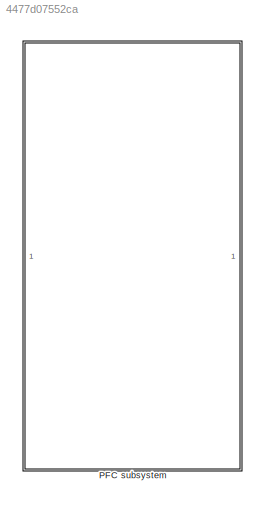
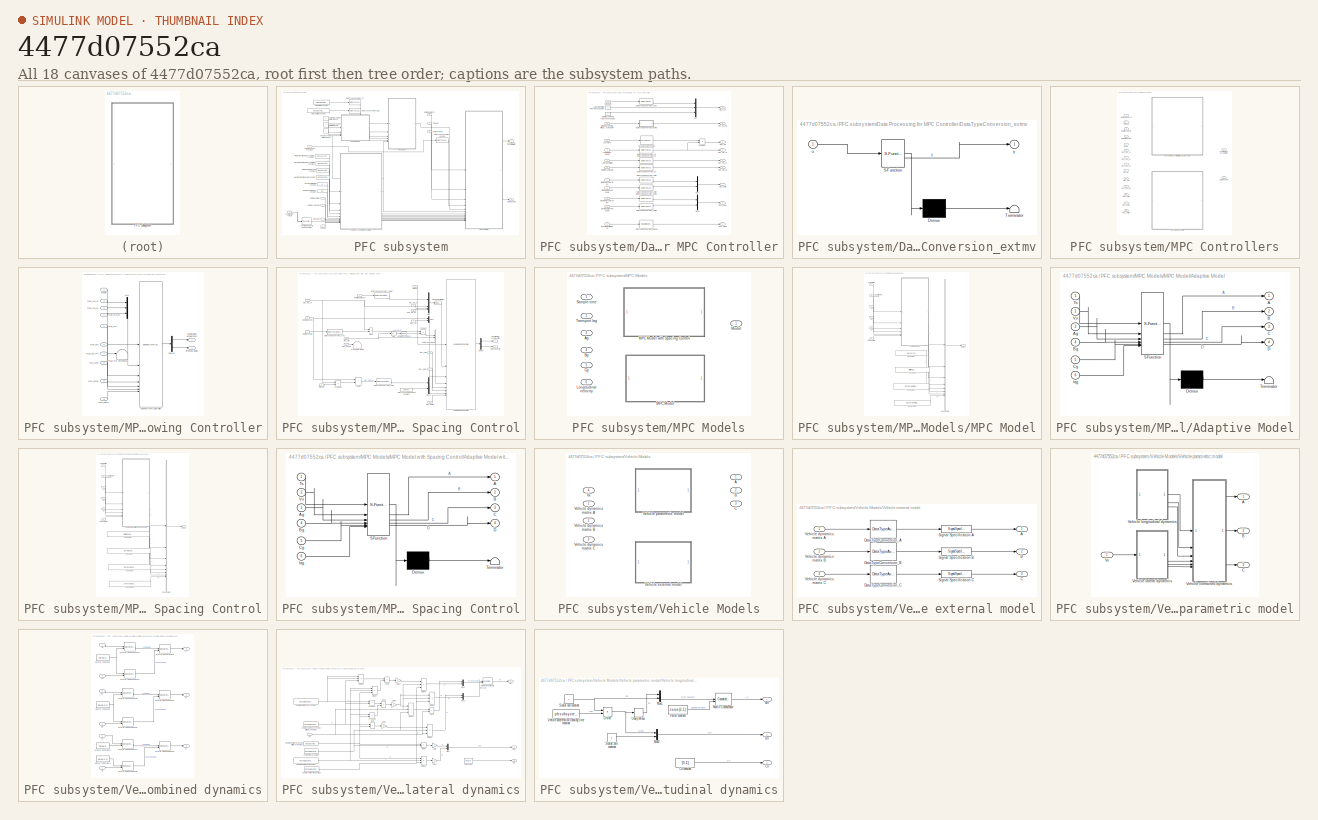
[diagram: thumbnail index - all 18 canvases of the model, root first then tree order]
MODEL slx_4477d07552ca
KIND model
CONFIG AbsTol = auto
CONFIG EnableMultiTasking = off
CONFIG FixedStep = auto
CONFIG MaxStep = auto
CONFIG MinStep = auto
CONFIG RelTol = 1e-3
CONFIG SampleTimeConstraint = Unconstrained
CONFIG SolverName = VariableStepAuto
CONFIG StartTime = 0.0
CONFIG StopTime = 10.0
BLOCK [SubSystem] PFC subsystem
  LibrarySourceBlock = mpcadaslib/Path Following Control System
  RTWFileNameOpts = Use function name
  RTWSystemCode = Reusable function
  TreatAsAtomicUnit = on
  VariantControl = Variant2
BLOCK [Inport] PFC subsystem/Curvature
  Port = 6
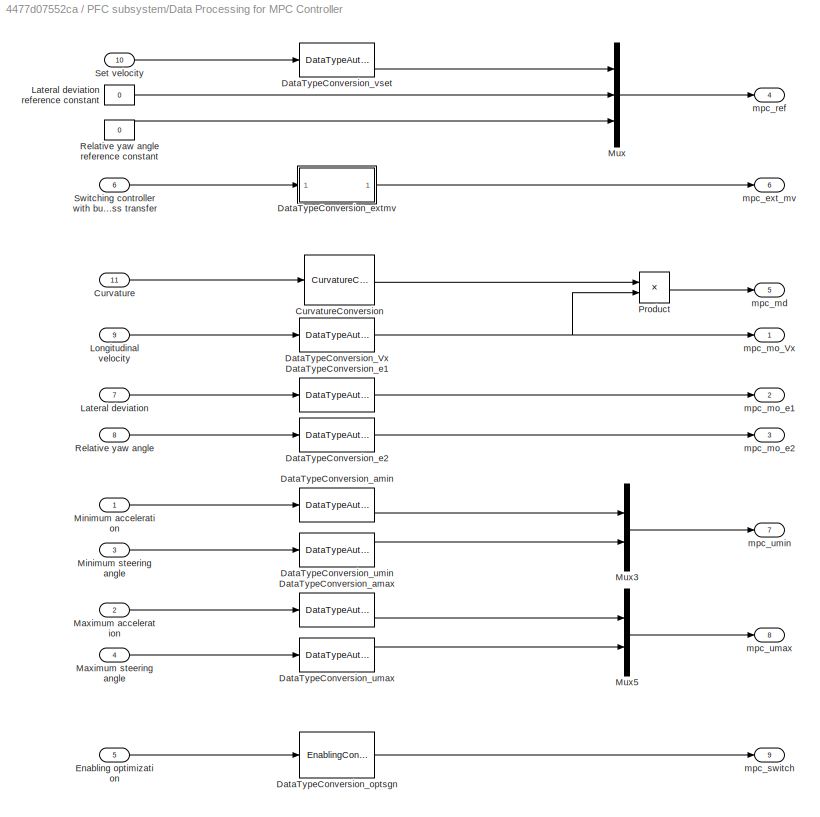
BLOCK [SubSystem] PFC subsystem/Data Processing for MPC Controller
BLOCK [Inport] PFC subsystem/Data Processing for MPC Controller/Curvature
  Port = 11
BLOCK [Reference] PFC subsystem/Data Processing for MPC Controller/CurvatureConversion  REF=mpcsigdimcheck_private/CurvatureConversion
  SourceBlock = mpcsigdimcheck_private/CurvatureConversion
  SourceType = MPCCurvatureConversion
BLOCK [Reference] PFC subsystem/Data Processing for MPC Controller/DataTypeConversion_Vx  REF=mpcsigdimcheck_private/DataTypeAutoConversion
  SourceBlock = mpcsigdimcheck_private/DataTypeAutoConversion
  SourceType = MPCDataTypeAutoConversion
BLOCK [Reference] PFC subsystem/Data Processing for MPC Controller/DataTypeConversion_amax  REF=mpcsigdimcheck_private/DataTypeAutoConversion
  SourceBlock = mpcsigdimcheck_private/DataTypeAutoConversion
  SourceType = MPCDataTypeAutoConversion
BLOCK [Reference] PFC subsystem/Data Processing for MPC Controller/DataTypeConversion_amin  REF=mpcsigdimcheck_private/DataTypeAutoConversion
  SourceBlock = mpcsigdimcheck_private/DataTypeAutoConversion
  SourceType = MPCDataTypeAutoConversion
BLOCK [Reference] PFC subsystem/Data Processing for MPC Controller/DataTypeConversion_e1  REF=mpcsigdimcheck_private/DataTypeAutoConversion
  SourceBlock = mpcsigdimcheck_private/DataTypeAutoConversion
  SourceType = MPCDataTypeAutoConversion
BLOCK [Reference] PFC subsystem/Data Processing for MPC Controller/DataTypeConversion_e2  REF=mpcsigdimcheck_private/DataTypeAutoConversion
  SourceBlock = mpcsigdimcheck_private/DataTypeAutoConversion
  SourceType = MPCDataTypeAutoConversion
BLOCK [SubSystem] PFC subsystem/Data Processing for MPC Controller/DataTypeConversion_extmv
  ErrorFcn = Stateflow.Translate.translate
  PermitHierarchicalResolution = ExplicitOnly
  SFBlockType = MATLAB Function
  TreatAsAtomicUnit = on
BLOCK [Demux] PFC subsystem/Data Processing for MPC Controller/DataTypeConversion_extmv/ Demux 
  Outputs = 1
BLOCK [S-Function] PFC subsystem/Data Processing for MPC Controller/DataTypeConversion_extmv/ SFunction 
  EnableBusSupport = off
  FunctionName = sf_sfun
  Parameters = isDouble
  PortCounts = [1 2]
  SFcnIsStateOwnerBlock = off
  SFunctionDeploymentMode = off
  Tag = Stateflow S-Function 6
BLOCK [Terminator] PFC subsystem/Data Processing for MPC Controller/DataTypeConversion_extmv/ Terminator 
BLOCK [Inport] PFC subsystem/Data Processing for MPC Controller/DataTypeConversion_extmv/u
BLOCK [Outport] PFC subsystem/Data Processing for MPC Controller/DataTypeConversion_extmv/y
BLOCK [Reference] PFC subsystem/Data Processing for MPC Controller/DataTypeConversion_optsgn  REF=mpcsigdimcheck_private/EnablingConversion
  SourceBlock = mpcsigdimcheck_private/EnablingConversion
  SourceType = SubSystem
BLOCK [Reference] PFC subsystem/Data Processing for MPC Controller/DataTypeConversion_umax  REF=mpcsigdimcheck_private/DataTypeAutoConversion
  SourceBlock = mpcsigdimcheck_private/DataTypeAutoConversion
  SourceType = MPCDataTypeAutoConversion
BLOCK [Reference] PFC subsystem/Data Processing for MPC Controller/DataTypeConversion_umin  REF=mpcsigdimcheck_private/DataTypeAutoConversion
  SourceBlock = mpcsigdimcheck_private/DataTypeAutoConversion
  SourceType = MPCDataTypeAutoConversion
BLOCK [Reference] PFC subsystem/Data Processing for MPC Controller/DataTypeConversion_vset  REF=mpcsigdimcheck_private/DataTypeAutoConversion
  SourceBlock = mpcsigdimcheck_private/DataTypeAutoConversion
  SourceType = MPCDataTypeAutoConversion
BLOCK [Inport] PFC subsystem/Data Processing for MPC Controller/Enabling optimization
  Port = 5
BLOCK [Inport] PFC subsystem/Data Processing for MPC Controller/Lateral deviation
  Port = 7
BLOCK [Constant] PFC subsystem/Data Processing for MPC Controller/Lateral deviation reference constant
  OutDataTypeStr = pfcsubsystem_data.DataType
  Value = 0
BLOCK [Inport] PFC subsystem/Data Processing for MPC Controller/Longitudinal velocity
  Port = 9
BLOCK [Inport] PFC subsystem/Data Processing for MPC Controller/Maximum acceleration
  Port = 2
BLOCK [Inport] PFC subsystem/Data Processing for MPC Controller/Maximum steering angle
  Port = 4
BLOCK [Inport] PFC subsystem/Data Processing for MPC Controller/Minimum acceleration
BLOCK [Inport] PFC subsystem/Data Processing for MPC Controller/Minimum steering angle
  Port = 3
BLOCK [Mux] PFC subsystem/Data Processing for MPC Controller/Mux
  DisplayOption = bar
  Inputs = 3
BLOCK [Mux] PFC subsystem/Data Processing for MPC Controller/Mux3
  DisplayOption = bar
  Inputs = 2
BLOCK [Mux] PFC subsystem/Data Processing for MPC Controller/Mux5
  DisplayOption = bar
  Inputs = 2
BLOCK [Product] PFC subsystem/Data Processing for MPC Controller/Product
BLOCK [Inport] PFC subsystem/Data Processing for MPC Controller/Relative yaw angle
  Port = 8
BLOCK [Constant] PFC subsystem/Data Processing for MPC Controller/Relative yaw angle reference constant 
  OutDataTypeStr = pfcsubsystem_data.DataType
  Value = 0
BLOCK [Inport] PFC subsystem/Data Processing for MPC Controller/Set velocity
  Port = 10
BLOCK [Inport] PFC subsystem/Data Processing for MPC Controller/Switching controller with bumpless transfer
  Port = 6
BLOCK [Outport] PFC subsystem/Data Processing for MPC Controller/mpc_ext_mv
  Port = 6
  VectorParamsAs1DForOutWhenUnconnected = off
BLOCK [Outport] PFC subsystem/Data Processing for MPC Controller/mpc_md
  Port = 5
  VectorParamsAs1DForOutWhenUnconnected = off
BLOCK [Outport] PFC subsystem/Data Processing for MPC Controller/mpc_mo_Vx
  VectorParamsAs1DForOutWhenUnconnected = off
BLOCK [Outport] PFC subsystem/Data Processing for MPC Controller/mpc_mo_e1
  Port = 2
  VectorParamsAs1DForOutWhenUnconnected = off
BLOCK [Outport] PFC subsystem/Data Processing for MPC Controller/mpc_mo_e2
  Port = 3
  VectorParamsAs1DForOutWhenUnconnected = off
BLOCK [Outport] PFC subsystem/Data Processing for MPC Controller/mpc_ref
  Port = 4
  VectorParamsAs1DForOutWhenUnconnected = off
BLOCK [Outport] PFC subsystem/Data Processing for MPC Controller/mpc_switch
  Port = 9
  VectorParamsAs1DForOutWhenUnconnected = off
BLOCK [Outport] PFC subsystem/Data Processing for MPC Controller/mpc_umax
  Port = 8
  VectorParamsAs1DForOutWhenUnconnected = off
BLOCK [Outport] PFC subsystem/Data Processing for MPC Controller/mpc_umin
  Port = 7
  VectorParamsAs1DForOutWhenUnconnected = off
BLOCK [Reference] PFC subsystem/DataTypeConversion_Ts  REF=mpcsigdimcheck_private/DataTypeAutoConversion
  SourceBlock = mpcsigdimcheck_private/DataTypeAutoConversion
  SourceType = MPCDataTypeAutoConversion
BLOCK [Reference] PFC subsystem/DataTypeConversion_spacing  REF=mpcsigdimcheck_private/DataTypeAutoConversion
  SourceBlock = mpcsigdimcheck_private/DataTypeAutoConversion
  SourceType = MPCDataTypeAutoConversion
BLOCK [Reference] PFC subsystem/DataTypeConversion_tlag  REF=mpcsigdimcheck_private/DataTypeAutoConversion
  SourceBlock = mpcsigdimcheck_private/DataTypeAutoConversion
  SourceType = MPCDataTypeAutoConversion
BLOCK [Inport] PFC subsystem/Default spacing constant
  Port = 9
BLOCK [Constant] PFC subsystem/Enable optimization constant
  OutDataTypeStr = pfcsubsystem_data.DataType
  Value = 0
BLOCK [Constant] PFC subsystem/External control signal constant
  OutDataTypeStr = pfcsubsystem_data.DataType
  Value = [0;0]
  VectorParams1D = off
BLOCK [Inport] PFC subsystem/Lateral deviation
  Port = 7
BLOCK [Outport] PFC subsystem/Longitudinal acceleration
  PortDimensions = 1
  SamplingMode = Sample based
  SignalType = real
  VectorParamsAs1DForOutWhenUnconnected = off
BLOCK [Inport] PFC subsystem/Longitudinal velocity
  Port = 5
BLOCK [Reference] PFC subsystem/Longitudinal velocity must be positive  REF=simulink/Model
Verification/Check Static 
Lower Bound
  Commented = on
  Description = 0 < u
  SourceBlock = simulink/Model\nVerification/Check Static \nLower Bound
  SourceType = Checks_SMin
BLOCK [SubSystem] PFC subsystem/MPC Controllers
  LabelModeActiveChoice = pathFollowingHasSpacingCtrl
  Variant = on
  VariantControl = Variant1
  VariantControlMode = label
BLOCK [Outport] PFC subsystem/MPC Controllers/  Steering angle
  Port = 2
  VectorParamsAs1DForOutWhenUnconnected = off
BLOCK [Outport] PFC subsystem/MPC Controllers/ Longitudinal acceleration
  VectorParamsAs1DForOutWhenUnconnected = off
BLOCK [Inport] PFC subsystem/MPC Controllers/Default spacing 
  Port = 4
BLOCK [Inport] PFC subsystem/MPC Controllers/Model 
  Port = 5
BLOCK [SubSystem] PFC subsystem/MPC Controllers/Path Following Controller
  VariantControl = pathFollowingNoSpacingCtrl
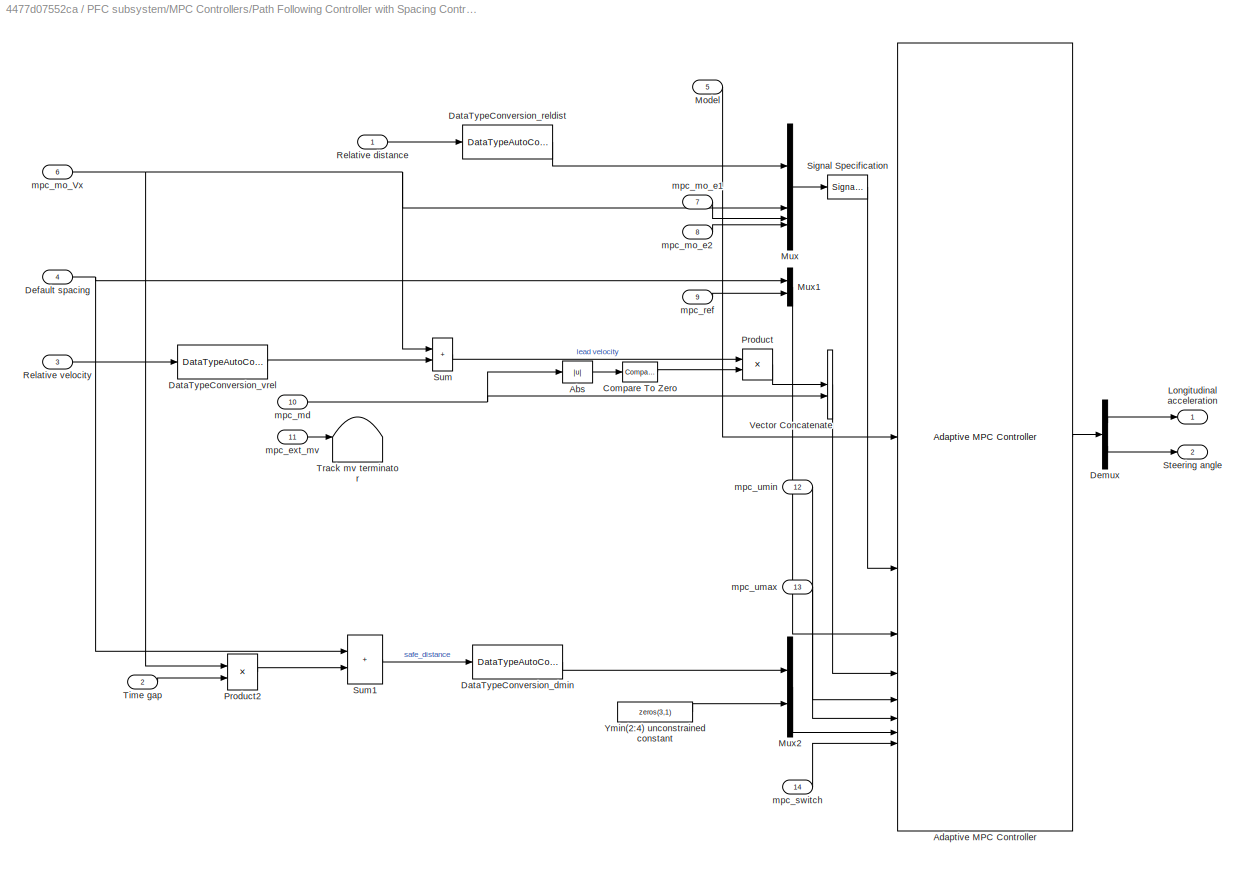
BLOCK [SubSystem] PFC subsystem/MPC Controllers/Path Following Controller with Spacing Control
  VariantControl = pathFollowingHasSpacingCtrl
BLOCK [Outport] PFC subsystem/MPC Controllers/Path Following Controller with Spacing Control/ Steering angle
  Port = 2
  Unit = rad
  VectorParamsAs1DForOutWhenUnconnected = off
BLOCK [Abs] PFC subsystem/MPC Controllers/Path Following Controller with Spacing Control/Abs
  SaturateOnIntegerOverflow = off
  ZeroCross = off
BLOCK [Reference] PFC subsystem/MPC Controllers/Path Following Controller with Spacing Control/Adaptive MPC Controller  REF=mpclib/Adaptive MPC Controller  (lib defined in mdl_ae329e0e0455)
  SCDEnableBlockLinearizationSpecification = on
  SourceBlock = mpclib/Adaptive MPC Controller
  SourceType = Adaptive MPC
BLOCK [Reference] PFC subsystem/MPC Controllers/Path Following Controller with Spacing Control/Compare To Zero  REF=simulink/Logic and Bit
Operations/Compare
To Zero
  SourceBlock = simulink/Logic and Bit\nOperations/Compare\nTo Zero
  SourceType = Compare To Zero
BLOCK [Reference] PFC subsystem/MPC Controllers/Path Following Controller with Spacing Control/DataTypeConversion_dmin  REF=mpcsigdimcheck_private/DataTypeAutoConversion
  SourceBlock = mpcsigdimcheck_private/DataTypeAutoConversion
  SourceType = MPCDataTypeAutoConversion
BLOCK [Reference] PFC subsystem/MPC Controllers/Path Following Controller with Spacing Control/DataTypeConversion_reldist  REF=mpcsigdimcheck_private/DataTypeAutoConversion
  SourceBlock = mpcsigdimcheck_private/DataTypeAutoConversion
  SourceType = MPCDataTypeAutoConversion
BLOCK [Reference] PFC subsystem/MPC Controllers/Path Following Controller with Spacing Control/DataTypeConversion_vrel  REF=mpcsigdimcheck_private/DataTypeAutoConversion
  SourceBlock = mpcsigdimcheck_private/DataTypeAutoConversion
  SourceType = MPCDataTypeAutoConversion
BLOCK [Inport] PFC subsystem/MPC Controllers/Path Following Controller with Spacing Control/Default spacing
  Port = 4
BLOCK [Demux] PFC subsystem/MPC Controllers/Path Following Controller with Spacing Control/Demux
  Outputs = 2
BLOCK [Outport] PFC subsystem/MPC Controllers/Path Following Controller with Spacing Control/Longitudinal acceleration
  Unit = m/s^2
  VectorParamsAs1DForOutWhenUnconnected = off
BLOCK [Inport] PFC subsystem/MPC Controllers/Path Following Controller with Spacing Control/Model
  Port = 5
BLOCK [Mux] PFC subsystem/MPC Controllers/Path Following Controller with Spacing Control/Mux
  DisplayOption = bar
BLOCK [Mux] PFC subsystem/MPC Controllers/Path Following Controller with Spacing Control/Mux1
  DisplayOption = bar
  Inputs = 2
BLOCK [Mux] PFC subsystem/MPC Controllers/Path Following Controller with Spacing Control/Mux2
  DisplayOption = bar
  Inputs = 2
BLOCK [Product] PFC subsystem/MPC Controllers/Path Following Controller with Spacing Control/Product
BLOCK [Product] PFC subsystem/MPC Controllers/Path Following Controller with Spacing Control/Product2
BLOCK [Inport] PFC subsystem/MPC Controllers/Path Following Controller with Spacing Control/Relative distance
  Unit = m
BLOCK [Inport] PFC subsystem/MPC Controllers/Path Following Controller with Spacing Control/Relative velocity
  Port = 3
  Unit = m/s
BLOCK [SignalSpecification] PFC subsystem/MPC Controllers/Path Following Controller with Spacing Control/Signal Specification
  Dimensions = 4
BLOCK [Sum] PFC subsystem/MPC Controllers/Path Following Controller with Spacing Control/Sum
  IconShape = rectangular
BLOCK [Sum] PFC subsystem/MPC Controllers/Path Following Controller with Spacing Control/Sum1
  IconShape = rectangular
BLOCK [Inport] PFC subsystem/MPC Controllers/Path Following Controller with Spacing Control/Time gap
  Port = 2
BLOCK [Terminator] PFC subsystem/MPC Controllers/Path Following Controller with Spacing Control/Track mv terminator
BLOCK [Concatenate] PFC subsystem/MPC Controllers/Path Following Controller with Spacing Control/Vector Concatenate
  ConcatenateDimension = 2
  Mode = Multidimensional array
BLOCK [Constant] PFC subsystem/MPC Controllers/Path Following Controller with Spacing Control/Ymin(2:4) unconstrained constant
  OutDataTypeStr = pfcsubsystem_data.DataType
  Value = zeros(3,1)
  VectorParams1D = off
BLOCK [Inport] PFC subsystem/MPC Controllers/Path Following Controller with Spacing Control/mpc_ext_mv
  Port = 11
BLOCK [Inport] PFC subsystem/MPC Controllers/Path Following Controller with Spacing Control/mpc_md
  Port = 10
BLOCK [Inport] PFC subsystem/MPC Controllers/Path Following Controller with Spacing Control/mpc_mo_Vx
  Port = 6
BLOCK [Inport] PFC subsystem/MPC Controllers/Path Following Controller with Spacing Control/mpc_mo_e1
  Port = 7
BLOCK [Inport] PFC subsystem/MPC Controllers/Path Following Controller with Spacing Control/mpc_mo_e2
  Port = 8
BLOCK [Inport] PFC subsystem/MPC Controllers/Path Following Controller with Spacing Control/mpc_ref
  Port = 9
BLOCK [Inport] PFC subsystem/MPC Controllers/Path Following Controller with Spacing Control/mpc_switch
  Port = 14
BLOCK [Inport] PFC subsystem/MPC Controllers/Path Following Controller with Spacing Control/mpc_umax
  Port = 13
BLOCK [Inport] PFC subsystem/MPC Controllers/Path Following Controller with Spacing Control/mpc_umin
  Port = 12
BLOCK [Outport] PFC subsystem/MPC Controllers/Path Following Controller/ Steering angle
  Port = 2
  Unit = rad
  VectorParamsAs1DForOutWhenUnconnected = off
BLOCK [Reference] PFC subsystem/MPC Controllers/Path Following Controller/Adaptive MPC Controller  REF=mpclib/Adaptive MPC Controller  (lib defined in mdl_ae329e0e0455)
  SCDEnableBlockLinearizationSpecification = on
  SourceBlock = mpclib/Adaptive MPC Controller
  SourceType = Adaptive MPC
BLOCK [Demux] PFC subsystem/MPC Controllers/Path Following Controller/Demux
  Outputs = 2
BLOCK [Outport] PFC subsystem/MPC Controllers/Path Following Controller/Longitudinal acceleration
  Unit = m/s^2
  VectorParamsAs1DForOutWhenUnconnected = off
BLOCK [Inport] PFC subsystem/MPC Controllers/Path Following Controller/Model
BLOCK [Mux] PFC subsystem/MPC Controllers/Path Following Controller/Mux
  DisplayOption = bar
  Inputs = 3
BLOCK [Terminator] PFC subsystem/MPC Controllers/Path Following Controller/Track mv terminator
BLOCK [Inport] PFC subsystem/MPC Controllers/Path Following Controller/mpc_ext_mv
  Port = 7
BLOCK [Inport] PFC subsystem/MPC Controllers/Path Following Controller/mpc_md
  Port = 6
BLOCK [Inport] PFC subsystem/MPC Controllers/Path Following Controller/mpc_mo_Vx
  Port = 2
BLOCK [Inport] PFC subsystem/MPC Controllers/Path Following Controller/mpc_mo_e1
  Port = 3
BLOCK [Inport] PFC subsystem/MPC Controllers/Path Following Controller/mpc_mo_e2
  Port = 4
BLOCK [Inport] PFC subsystem/MPC Controllers/Path Following Controller/mpc_ref
  Port = 5
BLOCK [Inport] PFC subsystem/MPC Controllers/Path Following Controller/mpc_switch
  Port = 10
BLOCK [Inport] PFC subsystem/MPC Controllers/Path Following Controller/mpc_umax
  Port = 9
BLOCK [Inport] PFC subsystem/MPC Controllers/Path Following Controller/mpc_umin
  Port = 8
BLOCK [Inport] PFC subsystem/MPC Controllers/Relative distance 
BLOCK [Inport] PFC subsystem/MPC Controllers/Relative velocity 
  Port = 3
BLOCK [Inport] PFC subsystem/MPC Controllers/Time gap 
  Port = 2
BLOCK [Inport] PFC subsystem/MPC Controllers/mpc_ext_mv 
  Port = 11
BLOCK [Inport] PFC subsystem/MPC Controllers/mpc_md 
  Port = 10
BLOCK [Inport] PFC subsystem/MPC Controllers/mpc_mo_Vx 
  Port = 6
BLOCK [Inport] PFC subsystem/MPC Controllers/mpc_mo_e1 
  Port = 7
BLOCK [Inport] PFC subsystem/MPC Controllers/mpc_mo_e2 
  Port = 8
BLOCK [Inport] PFC subsystem/MPC Controllers/mpc_ref 
  Port = 9
BLOCK [Inport] PFC subsystem/MPC Controllers/mpc_switch 
  Port = 14
BLOCK [Inport] PFC subsystem/MPC Controllers/mpc_umax 
  Port = 13
BLOCK [Inport] PFC subsystem/MPC Controllers/mpc_umin 
  Port = 12
BLOCK [SubSystem] PFC subsystem/MPC Models
  LabelModeActiveChoice = pathFollowingHasSpacingCtrl
  Variant = on
  VariantControl = Variant1
  VariantControlMode = label
BLOCK [Outport] PFC subsystem/MPC Models/ Model
  VectorParamsAs1DForOutWhenUnconnected = off
BLOCK [Inport] PFC subsystem/MPC Models/Ag
  Port = 3
BLOCK [Inport] PFC subsystem/MPC Models/Bg
  Port = 4
BLOCK [Inport] PFC subsystem/MPC Models/Cg
  Port = 5
BLOCK [Inport] PFC subsystem/MPC Models/Longitudinal velocity 
  Port = 6
BLOCK [SubSystem] PFC subsystem/MPC Models/MPC Model
  VariantControl = pathFollowingNoSpacingCtrl
BLOCK [SubSystem] PFC subsystem/MPC Models/MPC Model with Spacing Control
  VariantControl = pathFollowingHasSpacingCtrl
BLOCK [SubSystem] PFC subsystem/MPC Models/MPC Model with Spacing Control/Adaptive Model with Spacing Control
  ErrorFcn = Stateflow.Translate.translate
  PermitHierarchicalResolution = ExplicitOnly
  SFBlockType = MATLAB Function
  TreatAsAtomicUnit = on
BLOCK [Demux] PFC subsystem/MPC Models/MPC Model with Spacing Control/Adaptive Model with Spacing Control/ Demux 
  Outputs = 1
BLOCK [S-Function] PFC subsystem/MPC Models/MPC Model with Spacing Control/Adaptive Model with Spacing Control/ SFunction 
  EnableBusSupport = off
  FunctionName = sf_sfun
  PortCounts = [6 5]
  SFcnIsStateOwnerBlock = off
  SFunctionDeploymentMode = off
  Tag = Stateflow S-Function 3
BLOCK [Terminator] PFC subsystem/MPC Models/MPC Model with Spacing Control/Adaptive Model with Spacing Control/ Terminator 
BLOCK [Outport] PFC subsystem/MPC Models/MPC Model with Spacing Control/Adaptive Model with Spacing Control/A
  VectorParamsAs1DForOutWhenUnconnected = off
BLOCK [Inport] PFC subsystem/MPC Models/MPC Model with Spacing Control/Adaptive Model with Spacing Control/Ag
  Port = 3
BLOCK [Outport] PFC subsystem/MPC Models/MPC Model with Spacing Control/Adaptive Model with Spacing Control/B
  Port = 2
  VectorParamsAs1DForOutWhenUnconnected = off
BLOCK [Inport] PFC subsystem/MPC Models/MPC Model with Spacing Control/Adaptive Model with Spacing Control/Bg
  Port = 4
BLOCK [Outport] PFC subsystem/MPC Models/MPC Model with Spacing Control/Adaptive Model with Spacing Control/C
  Port = 3
  VectorParamsAs1DForOutWhenUnconnected = off
BLOCK [Inport] PFC subsystem/MPC Models/MPC Model with Spacing Control/Adaptive Model with Spacing Control/Cg
  Port = 5
BLOCK [Outport] PFC subsystem/MPC Models/MPC Model with Spacing Control/Adaptive Model with Spacing Control/D
  Port = 4
  VectorParamsAs1DForOutWhenUnconnected = off
BLOCK [Inport] PFC subsystem/MPC Models/MPC Model with Spacing Control/Adaptive Model with Spacing Control/Ts
BLOCK [Inport] PFC subsystem/MPC Models/MPC Model with Spacing Control/Adaptive Model with Spacing Control/Vx
  Port = 2
BLOCK [Inport] PFC subsystem/MPC Models/MPC Model with Spacing Control/Adaptive Model with Spacing Control/lag
  Port = 6
BLOCK [Inport] PFC subsystem/MPC Models/MPC Model with Spacing Control/Ag
  Port = 4
BLOCK [Inport] PFC subsystem/MPC Models/MPC Model with Spacing Control/Bg
  Port = 5
BLOCK [BusCreator] PFC subsystem/MPC Models/MPC Model with Spacing Control/Bus Creator2
  DisplayOption = bar
  InheritFromInputs = on
  Inputs = 8
BLOCK [Inport] PFC subsystem/MPC Models/MPC Model with Spacing Control/Cg
  Port = 6
BLOCK [Constant] PFC subsystem/MPC Models/MPC Model with Spacing Control/DX Constant
  OutDataTypeStr = pfcsubsystem_data.DataType
  Value = zeros(pfcsubsystem_data.NumEgoStates+3+4*pfcsubsystem_data.hasLag,1)
  VectorParams1D = off
BLOCK [Inport] PFC subsystem/MPC Models/MPC Model with Spacing Control/Longitudinal velocity
  Port = 3
BLOCK [Outport] PFC subsystem/MPC Models/MPC Model with Spacing Control/Model
  VectorParamsAs1DForOutWhenUnconnected = off
BLOCK [Inport] PFC subsystem/MPC Models/MPC Model with Spacing Control/Sample time
BLOCK [Inport] PFC subsystem/MPC Models/MPC Model with Spacing Control/Transport lag
  Port = 2
BLOCK [Constant] PFC subsystem/MPC Models/MPC Model with Spacing Control/U Constant
  OutDataTypeStr = pfcsubsystem_data.DataType
  Value = [0;0;pfcsubsystem_data.InitialLongVel;0]
  VectorParams1D = off
BLOCK [Constant] PFC subsystem/MPC Models/MPC Model with Spacing Control/X Constant
  OutDataTypeStr = pfcsubsystem_data.DataType
  Value = zeros(pfcsubsystem_data.NumEgoStates+3+4*pfcsubsystem_data.hasLag,1)
  VectorParams1D = off
BLOCK [Constant] PFC subsystem/MPC Models/MPC Model with Spacing Control/Y Constant
  OutDataTypeStr = pfcsubsystem_data.DataType
  Value = [1.4*pfcsubsystem_data.InitialLongVel+pfcsubsystem_data.DefaultSpacing;pfcsubsystem_data.InitialLongVel;0;0]
  VectorParams1D = off
BLOCK [SubSystem] PFC subsystem/MPC Models/MPC Model/Adaptive Model
  ErrorFcn = Stateflow.Translate.translate
  PermitHierarchicalResolution = ExplicitOnly
  SFBlockType = MATLAB Function
  TreatAsAtomicUnit = on
BLOCK [Demux] PFC subsystem/MPC Models/MPC Model/Adaptive Model/ Demux 
  Outputs = 1
BLOCK [S-Function] PFC subsystem/MPC Models/MPC Model/Adaptive Model/ SFunction 
  EnableBusSupport = off
  FunctionName = sf_sfun
  PortCounts = [6 5]
  SFcnIsStateOwnerBlock = off
  SFunctionDeploymentMode = off
  Tag = Stateflow S-Function 2
BLOCK [Terminator] PFC subsystem/MPC Models/MPC Model/Adaptive Model/ Terminator 
BLOCK [Outport] PFC subsystem/MPC Models/MPC Model/Adaptive Model/A
  VectorParamsAs1DForOutWhenUnconnected = off
BLOCK [Inport] PFC subsystem/MPC Models/MPC Model/Adaptive Model/Ag
  Port = 3
BLOCK [Outport] PFC subsystem/MPC Models/MPC Model/Adaptive Model/B
  Port = 2
  VectorParamsAs1DForOutWhenUnconnected = off
BLOCK [Inport] PFC subsystem/MPC Models/MPC Model/Adaptive Model/Bg
  Port = 4
BLOCK [Outport] PFC subsystem/MPC Models/MPC Model/Adaptive Model/C
  Port = 3
  VectorParamsAs1DForOutWhenUnconnected = off
BLOCK [Inport] PFC subsystem/MPC Models/MPC Model/Adaptive Model/Cg
  Port = 5
BLOCK [Outport] PFC subsystem/MPC Models/MPC Model/Adaptive Model/D
  Port = 4
  VectorParamsAs1DForOutWhenUnconnected = off
BLOCK [Inport] PFC subsystem/MPC Models/MPC Model/Adaptive Model/Ts
BLOCK [Inport] PFC subsystem/MPC Models/MPC Model/Adaptive Model/Vx
  Port = 2
BLOCK [Inport] PFC subsystem/MPC Models/MPC Model/Adaptive Model/lag
  Port = 6
BLOCK [Inport] PFC subsystem/MPC Models/MPC Model/Ag
  Port = 4
BLOCK [Inport] PFC subsystem/MPC Models/MPC Model/Bg
  Port = 5
BLOCK [BusCreator] PFC subsystem/MPC Models/MPC Model/Bus Creator2
  DisplayOption = bar
  InheritFromInputs = on
  Inputs = 8
BLOCK [Inport] PFC subsystem/MPC Models/MPC Model/Cg
  Port = 6
BLOCK [Constant] PFC subsystem/MPC Models/MPC Model/DX Constant
  OutDataTypeStr = pfcsubsystem_data.DataType
  Value = zeros(NumEgoStates+2+3*hasLag,1)
  VectorParams1D = off
BLOCK [Inport] PFC subsystem/MPC Models/MPC Model/Longitudinal velocity
  Port = 3
BLOCK [Outport] PFC subsystem/MPC Models/MPC Model/Model
  VectorParamsAs1DForOutWhenUnconnected = off
BLOCK [Inport] PFC subsystem/MPC Models/MPC Model/Sample time
BLOCK [Inport] PFC subsystem/MPC Models/MPC Model/Transport lag
  Port = 2
BLOCK [Constant] PFC subsystem/MPC Models/MPC Model/U Constant
  OutDataTypeStr = pfcsubsystem_data.DataType
  Value = zeros(3,1)
  VectorParams1D = off
BLOCK [Constant] PFC subsystem/MPC Models/MPC Model/X Constant
  OutDataTypeStr = pfcsubsystem_data.DataType
  Value = zeros(NumEgoStates+2+3*hasLag,1)
  VectorParams1D = off
BLOCK [Constant] PFC subsystem/MPC Models/MPC Model/Y Constant
  OutDataTypeStr = pfcsubsystem_data.DataType
  Value = [InitialLongVel;0;0]
  VectorParams1D = off
BLOCK [Inport] PFC subsystem/MPC Models/Sample time
BLOCK [Inport] PFC subsystem/MPC Models/Transport lag
  Port = 2
BLOCK [Constant] PFC subsystem/Maximum longitudinal acceleration constant
  OutDataTypeStr = pfcsubsystem_data.DataType
  Value = pfcsubsystem_data.MaxAcceleration
BLOCK [Constant] PFC subsystem/Maximum steering angle constant
  OutDataTypeStr = pfcsubsystem_data.DataType
  Value = pfcsubsystem_data.MaxSteering
BLOCK [Constant] PFC subsystem/Minimum longitudinal acceleration constant
  OutDataTypeStr = pfcsubsystem_data.DataType
  Value = pfcsubsystem_data.MinAcceleration
BLOCK [Constant] PFC subsystem/Minimum steering angle constant
  OutDataTypeStr = pfcsubsystem_data.DataType
  Value = pfcsubsystem_data.MinSteering
BLOCK [Inport] PFC subsystem/Relative distance
  Port = 3
BLOCK [Inport] PFC subsystem/Relative velocity
  Port = 4
BLOCK [Inport] PFC subsystem/Relative yaw angle
  Port = 8
BLOCK [Constant] PFC subsystem/Sample time constant
  OutDataTypeStr = pfcsubsystem_data.DataType
  Value = pfcsubsystem_data.Ts
BLOCK [Inport] PFC subsystem/Set velocity
BLOCK [Outport] PFC subsystem/Steering angle
  Port = 2
  VectorParamsAs1DForOutWhenUnconnected = off
BLOCK [Inport] PFC subsystem/Time gap
  Port = 2
BLOCK [Constant] PFC subsystem/Transport lag constant
  OutDataTypeStr = pfcsubsystem_data.DataType
  Value = pfcsubsystem_data.TransportLag
BLOCK [SubSystem] PFC subsystem/Vehicle Models
  LabelModeActiveChoice = useVehicleParameters
  Variant = on
  VariantControl = Variant1
  VariantControlMode = label
BLOCK [Outport] PFC subsystem/Vehicle Models/ A
  VectorParamsAs1DForOutWhenUnconnected = off
BLOCK [Outport] PFC subsystem/Vehicle Models/ B
  Port = 2
  VectorParamsAs1DForOutWhenUnconnected = off
BLOCK [Outport] PFC subsystem/Vehicle Models/ C
  Port = 3
  VectorParamsAs1DForOutWhenUnconnected = off
BLOCK [Inport] PFC subsystem/Vehicle Models/Vehicle dynamics matrix A
BLOCK [Inport] PFC subsystem/Vehicle Models/Vehicle dynamics matrix B
  Port = 2
BLOCK [Inport] PFC subsystem/Vehicle Models/Vehicle dynamics matrix C
  Port = 3
BLOCK [SubSystem] PFC subsystem/Vehicle Models/Vehicle external model
  VariantControl = useVehicleModel
BLOCK [Outport] PFC subsystem/Vehicle Models/Vehicle external model/A
  VectorParamsAs1DForOutWhenUnconnected = off
BLOCK [Outport] PFC subsystem/Vehicle Models/Vehicle external model/B
  Port = 2
  VectorParamsAs1DForOutWhenUnconnected = off
BLOCK [Outport] PFC subsystem/Vehicle Models/Vehicle external model/C
  Port = 3
  VectorParamsAs1DForOutWhenUnconnected = off
BLOCK [Reference] PFC subsystem/Vehicle Models/Vehicle external model/DataTypeConversion_A  REF=mpcsigdimcheck_private/DataTypeAutoConversion2D
  SourceBlock = mpcsigdimcheck_private/DataTypeAutoConversion2D
  SourceType = MPCDataTypeAutoConversion2D
BLOCK [Reference] PFC subsystem/Vehicle Models/Vehicle external model/DataTypeConversion_B  REF=mpcsigdimcheck_private/DataTypeAutoConversion2D
  SourceBlock = mpcsigdimcheck_private/DataTypeAutoConversion2D
  SourceType = MPCDataTypeAutoConversion2D
BLOCK [Reference] PFC subsystem/Vehicle Models/Vehicle external model/DataTypeConversion_C  REF=mpcsigdimcheck_private/DataTypeAutoConversion2D
  SourceBlock = mpcsigdimcheck_private/DataTypeAutoConversion2D
  SourceType = MPCDataTypeAutoConversion2D
BLOCK [SignalSpecification] PFC subsystem/Vehicle Models/Vehicle external model/Signal Specification A
BLOCK [SignalSpecification] PFC subsystem/Vehicle Models/Vehicle external model/Signal Specification B
BLOCK [SignalSpecification] PFC subsystem/Vehicle Models/Vehicle external model/Signal Specification C
BLOCK [Inport] PFC subsystem/Vehicle Models/Vehicle external model/Vehicle dynamics matrix A
BLOCK [Inport] PFC subsystem/Vehicle Models/Vehicle external model/Vehicle dynamics matrix B
  Port = 2
BLOCK [Inport] PFC subsystem/Vehicle Models/Vehicle external model/Vehicle dynamics matrix C
  Port = 3
BLOCK [SubSystem] PFC subsystem/Vehicle Models/Vehicle parametric model
  VariantControl = useVehicleParameters
BLOCK [Outport] PFC subsystem/Vehicle Models/Vehicle parametric model/A
  VectorParamsAs1DForOutWhenUnconnected = off
BLOCK [Outport] PFC subsystem/Vehicle Models/Vehicle parametric model/B
  Port = 2
  VectorParamsAs1DForOutWhenUnconnected = off
BLOCK [Outport] PFC subsystem/Vehicle Models/Vehicle parametric model/C
  Port = 3
  VectorParamsAs1DForOutWhenUnconnected = off
BLOCK [SubSystem] PFC subsystem/Vehicle Models/Vehicle parametric model/Vehicle combined dynamics
BLOCK [Outport] PFC subsystem/Vehicle Models/Vehicle parametric model/Vehicle combined dynamics/A
  VectorParamsAs1DForOutWhenUnconnected = off
BLOCK [Inport] PFC subsystem/Vehicle Models/Vehicle parametric model/Vehicle combined dynamics/A1
BLOCK [Inport] PFC subsystem/Vehicle Models/Vehicle parametric model/Vehicle combined dynamics/A2
  Port = 4
BLOCK [Outport] PFC subsystem/Vehicle Models/Vehicle parametric model/Vehicle combined dynamics/B
  Port = 2
  VectorParamsAs1DForOutWhenUnconnected = off
BLOCK [Inport] PFC subsystem/Vehicle Models/Vehicle parametric model/Vehicle combined dynamics/B1
  Port = 2
BLOCK [Inport] PFC subsystem/Vehicle Models/Vehicle parametric model/Vehicle combined dynamics/B2
  Port = 5
BLOCK [Outport] PFC subsystem/Vehicle Models/Vehicle parametric model/Vehicle combined dynamics/C
  Port = 3
  VectorParamsAs1DForOutWhenUnconnected = off
BLOCK [Inport] PFC subsystem/Vehicle Models/Vehicle parametric model/Vehicle combined dynamics/C1
  Port = 3
BLOCK [Inport] PFC subsystem/Vehicle Models/Vehicle parametric model/Vehicle combined dynamics/C2
  Port = 6
BLOCK [Concatenate] PFC subsystem/Vehicle Models/Vehicle parametric model/Vehicle combined dynamics/Matrix Concatenate
  ConcatenateDimension = 2
  Mode = Multidimensional array
BLOCK [Concatenate] PFC subsystem/Vehicle Models/Vehicle parametric model/Vehicle combined dynamics/Matrix Concatenate1
  ConcatenateDimension = 2
  Mode = Multidimensional array
BLOCK [Concatenate] PFC subsystem/Vehicle Models/Vehicle parametric model/Vehicle combined dynamics/Matrix Concatenate2
  ConcatenateDimension = 2
  Mode = Multidimensional array
BLOCK [Concatenate] PFC subsystem/Vehicle Models/Vehicle parametric model/Vehicle combined dynamics/Matrix Concatenate3
  Mode = Multidimensional array
BLOCK [Concatenate] PFC subsystem/Vehicle Models/Vehicle parametric model/Vehicle combined dynamics/Matrix Concatenate4
  Mode = Multidimensional array
BLOCK [Concatenate] PFC subsystem/Vehicle Models/Vehicle parametric model/Vehicle combined dynamics/Matrix Concatenate5
  Mode = Multidimensional array
BLOCK [Concatenate] PFC subsystem/Vehicle Models/Vehicle parametric model/Vehicle combined dynamics/Matrix Concatenate6
  Mode = Multidimensional array
BLOCK [Concatenate] PFC subsystem/Vehicle Models/Vehicle parametric model/Vehicle combined dynamics/Matrix Concatenate7
  Mode = Multidimensional array
BLOCK [Concatenate] PFC subsystem/Vehicle Models/Vehicle parametric model/Vehicle combined dynamics/Matrix Concatenate8
  Mode = Multidimensional array
BLOCK [Constant] PFC subsystem/Vehicle Models/Vehicle parametric model/Vehicle combined dynamics/Matrix constant
  OutDataTypeStr = pfcsubsystem_data.DataType
  Value = zeros(2)
  VectorParams1D = off
BLOCK [Constant] PFC subsystem/Vehicle Models/Vehicle parametric model/Vehicle combined dynamics/Matrix constant1
  OutDataTypeStr = pfcsubsystem_data.DataType
  Value = zeros(2)
  VectorParams1D = off
BLOCK [Constant] PFC subsystem/Vehicle Models/Vehicle parametric model/Vehicle combined dynamics/Vector constant
  OutDataTypeStr = pfcsubsystem_data.DataType
  Value = zeros(2,1)
  VectorParams1D = off
BLOCK [Constant] PFC subsystem/Vehicle Models/Vehicle parametric model/Vehicle combined dynamics/Vector constant1
  OutDataTypeStr = pfcsubsystem_data.DataType
  Value = zeros(1,2)
  VectorParams1D = off
BLOCK [SubSystem] PFC subsystem/Vehicle Models/Vehicle parametric model/Vehicle lateral dynamics
BLOCK [Outport] PFC subsystem/Vehicle Models/Vehicle parametric model/Vehicle lateral dynamics/Am
  VectorParamsAs1DForOutWhenUnconnected = off
BLOCK [Outport] PFC subsystem/Vehicle Models/Vehicle parametric model/Vehicle lateral dynamics/Bm
  Port = 2
  VectorParamsAs1DForOutWhenUnconnected = off
BLOCK [Outport] PFC subsystem/Vehicle Models/Vehicle parametric model/Vehicle lateral dynamics/Cm
  Port = 3
  VectorParamsAs1DForOutWhenUnconnected = off
BLOCK [Constant] PFC subsystem/Vehicle Models/Vehicle parametric model/Vehicle lateral dynamics/Cm Constant
  OutDataTypeStr = pfcsubsystem_data.DataType
  Value = eye(2)
BLOCK [Product] PFC subsystem/Vehicle Models/Vehicle parametric model/Vehicle lateral dynamics/Divide
  Inputs = */
BLOCK [Product] PFC subsystem/Vehicle Models/Vehicle parametric model/Vehicle lateral dynamics/Divide1
  Inputs = **/
BLOCK [Product] PFC subsystem/Vehicle Models/Vehicle parametric model/Vehicle lateral dynamics/Divide2
  Inputs = *//
BLOCK [Product] PFC subsystem/Vehicle Models/Vehicle parametric model/Vehicle lateral dynamics/Divide3
  Inputs = *//
BLOCK [Product] PFC subsystem/Vehicle Models/Vehicle parametric model/Vehicle lateral dynamics/Divide4
  Inputs = *//
BLOCK [Product] PFC subsystem/Vehicle Models/Vehicle parametric model/Vehicle lateral dynamics/Divide5
  Inputs = *//
BLOCK [Product] PFC subsystem/Vehicle Models/Vehicle parametric model/Vehicle lateral dynamics/Divide6
  Inputs = ***
BLOCK [Product] PFC subsystem/Vehicle Models/Vehicle parametric model/Vehicle lateral dynamics/Divide7
  Inputs = ***
BLOCK [Gain] PFC subsystem/Vehicle Models/Vehicle parametric model/Vehicle lateral dynamics/Gain
  Gain = 2
BLOCK [Gain] PFC subsystem/Vehicle Models/Vehicle parametric model/Vehicle lateral dynamics/Gain1
  Gain = 2
BLOCK [Gain] PFC subsystem/Vehicle Models/Vehicle parametric model/Vehicle lateral dynamics/Gain2
  Gain = -2
BLOCK [Gain] PFC subsystem/Vehicle Models/Vehicle parametric model/Vehicle lateral dynamics/Gain3
  Gain = -2
BLOCK [Gain] PFC subsystem/Vehicle Models/Vehicle parametric model/Vehicle lateral dynamics/Gain4
  Gain = -2
BLOCK [Concatenate] PFC subsystem/Vehicle Models/Vehicle parametric model/Vehicle lateral dynamics/Matrix Concatenate
  ConcatenateDimension = 2
  Mode = Multidimensional array
BLOCK [Mux] PFC subsystem/Vehicle Models/Vehicle parametric model/Vehicle lateral dynamics/Mux
  DisplayOption = bar
  Inputs = [1 1]
BLOCK [Mux] PFC subsystem/Vehicle Models/Vehicle parametric model/Vehicle lateral dynamics/Mux1
  DisplayOption = bar
  Inputs = [1 1]
BLOCK [Mux] PFC subsystem/Vehicle Models/Vehicle parametric model/Vehicle lateral dynamics/Mux2
  DisplayOption = bar
  Inputs = [1 1]
BLOCK [Product] PFC subsystem/Vehicle Models/Vehicle parametric model/Vehicle lateral dynamics/Product
BLOCK [Product] PFC subsystem/Vehicle Models/Vehicle parametric model/Vehicle lateral dynamics/Product1
BLOCK [Sum] PFC subsystem/Vehicle Models/Vehicle parametric model/Vehicle lateral dynamics/Sum
  IconShape = rectangular
BLOCK [Sum] PFC subsystem/Vehicle Models/Vehicle parametric model/Vehicle lateral dynamics/Sum1
  IconShape = rectangular
  Inputs = -+
BLOCK [Sum] PFC subsystem/Vehicle Models/Vehicle parametric model/Vehicle lateral dynamics/Sum2
  IconShape = rectangular
  Inputs = +-
BLOCK [Sum] PFC subsystem/Vehicle Models/Vehicle parametric model/Vehicle lateral dynamics/Sum3
  IconShape = rectangular
BLOCK [Constant] PFC subsystem/Vehicle Models/Vehicle parametric model/Vehicle lateral dynamics/Vehicle front tire cornering stiffness constant
  OutDataTypeStr = pfcsubsystem_data.DataType
  Value = pfcsubsystem_data.FrontTireStiffness
BLOCK [Constant] PFC subsystem/Vehicle Models/Vehicle parametric model/Vehicle lateral dynamics/Vehicle length to front constant
  OutDataTypeStr = pfcsubsystem_data.DataType
  Value = pfcsubsystem_data.LengthToFront
BLOCK [Constant] PFC subsystem/Vehicle Models/Vehicle parametric model/Vehicle lateral dynamics/Vehicle length to rear constant
  OutDataTypeStr = pfcsubsystem_data.DataType
  Value = pfcsubsystem_data.LengthToRear
BLOCK [Constant] PFC subsystem/Vehicle Models/Vehicle parametric model/Vehicle lateral dynamics/Vehicle mass constant
  OutDataTypeStr = pfcsubsystem_data.DataType
  Value = pfcsubsystem_data.VehicleMass
BLOCK [Constant] PFC subsystem/Vehicle Models/Vehicle parametric model/Vehicle lateral dynamics/Vehicle rear tire cornering stiffness constant
  OutDataTypeStr = pfcsubsystem_data.DataType
  Value = pfcsubsystem_data.RearTireStiffness
BLOCK [Constant] PFC subsystem/Vehicle Models/Vehicle parametric model/Vehicle lateral dynamics/Vehicle yaw inertia constant
  OutDataTypeStr = pfcsubsystem_data.DataType
  Value = pfcsubsystem_data.VehicleYawInertia
BLOCK [Inport] PFC subsystem/Vehicle Models/Vehicle parametric model/Vehicle lateral dynamics/Vx
BLOCK [SubSystem] PFC subsystem/Vehicle Models/Vehicle parametric model/Vehicle longitudinal dynamics
BLOCK [Outport] PFC subsystem/Vehicle Models/Vehicle parametric model/Vehicle longitudinal dynamics/An
  VectorParamsAs1DForOutWhenUnconnected = off
BLOCK [Outport] PFC subsystem/Vehicle Models/Vehicle parametric model/Vehicle longitudinal dynamics/Bn
  Port = 2
  VectorParamsAs1DForOutWhenUnconnected = off
BLOCK [Outport] PFC subsystem/Vehicle Models/Vehicle parametric model/Vehicle longitudinal dynamics/Cn
  Port = 3
  VectorParamsAs1DForOutWhenUnconnected = off
BLOCK [Constant] PFC subsystem/Vehicle Models/Vehicle parametric model/Vehicle longitudinal dynamics/Cn constant
  OutDataTypeStr = pfcsubsystem_data.DataType
  Value = [0,1]
  VectorParams1D = off
BLOCK [Product] PFC subsystem/Vehicle Models/Vehicle parametric model/Vehicle longitudinal dynamics/Divide
  Inputs = */
BLOCK [Concatenate] PFC subsystem/Vehicle Models/Vehicle parametric model/Vehicle longitudinal dynamics/Matrix Concatenate
  ConcatenateDimension = 2
  Mode = Multidimensional array
BLOCK [Mux] PFC subsystem/Vehicle Models/Vehicle parametric model/Vehicle longitudinal dynamics/Mux1
  DisplayOption = bar
  Inputs = [1 1]
BLOCK [Mux] PFC subsystem/Vehicle Models/Vehicle parametric model/Vehicle longitudinal dynamics/Mux2
  DisplayOption = bar
  Inputs = [1 1]
BLOCK [Constant] PFC subsystem/Vehicle Models/Vehicle parametric model/Vehicle longitudinal dynamics/Scalar one constant
  OutDataTypeStr = pfcsubsystem_data.DataType
BLOCK [Constant] PFC subsystem/Vehicle Models/Vehicle parametric model/Vehicle longitudinal dynamics/Scalar zero constant
  OutDataTypeStr = pfcsubsystem_data.DataType
  Value = 0
BLOCK [UnaryMinus] PFC subsystem/Vehicle Models/Vehicle parametric model/Vehicle longitudinal dynamics/Unary Minus
BLOCK [Constant] PFC subsystem/Vehicle Models/Vehicle parametric model/Vehicle longitudinal dynamics/Vector constant
  OutDataTypeStr = pfcsubsystem_data.DataType
  Value = zeros(2,1)
  VectorParams1D = off
BLOCK [Constant] PFC subsystem/Vehicle Models/Vehicle parametric model/Vehicle longitudinal dynamics/Vehicle acceleration tracking time constant
  OutDataTypeStr = pfcsubsystem_data.DataType
  Value = pfcsubsystem_data.AccelTimeConstant
BLOCK [Inport] PFC subsystem/Vehicle Models/Vehicle parametric model/Vx
BLOCK [Inport] PFC subsystem/Vehicle Models/Vx 
  Port = 4
BLOCK [Constant] PFC subsystem/Vehicle dynamics matrix A ground
  OutDataTypeStr = pfcsubsystem_data.DataType
BLOCK [Constant] PFC subsystem/Vehicle dynamics matrix B ground
  OutDataTypeStr = pfcsubsystem_data.DataType
BLOCK [Constant] PFC subsystem/Vehicle dynamics matrix C ground
  OutDataTypeStr = pfcsubsystem_data.DataType
LINE PFC subsystem/Curvature:1 -> PFC subsystem/Data Processing for MPC Controller:11
LINE PFC subsystem/Data Processing for MPC Controller/Curvature:1 -> PFC subsystem/Data Processing for MPC Controller/CurvatureConversion:1
LINE PFC subsystem/Data Processing for MPC Controller/CurvatureConversion:1 -> PFC subsystem/Data Processing for MPC Controller/Product:1
NET PFC subsystem/Data Processing for MPC Controller/DataTypeConversion_Vx:1 -> PFC subsystem/Data Processing for MPC Controller/Product:2, PFC subsystem/Data Processing for MPC Controller/mpc_mo_Vx:1
LINE PFC subsystem/Data Processing for MPC Controller/DataTypeConversion_amax:1 -> PFC subsystem/Data Processing for MPC Controller/Mux5:1
LINE PFC subsystem/Data Processing for MPC Controller/DataTypeConversion_amin:1 -> PFC subsystem/Data Processing for MPC Controller/Mux3:1
LINE PFC subsystem/Data Processing for MPC Controller/DataTypeConversion_e1:1 -> PFC subsystem/Data Processing for MPC Controller/mpc_mo_e1:1
LINE PFC subsystem/Data Processing for MPC Controller/DataTypeConversion_e2:1 -> PFC subsystem/Data Processing for MPC Controller/mpc_mo_e2:1
LINE PFC subsystem/Data Processing for MPC Controller/DataTypeConversion_extmv:1 -> PFC subsystem/Data Processing for MPC Controller/mpc_ext_mv:1
LINE PFC subsystem/Data Processing for MPC Controller/DataTypeConversion_optsgn:1 -> PFC subsystem/Data Processing for MPC Controller/mpc_switch:1
LINE PFC subsystem/Data Processing for MPC Controller/DataTypeConversion_umax:1 -> PFC subsystem/Data Processing for MPC Controller/Mux5:2
LINE PFC subsystem/Data Processing for MPC Controller/DataTypeConversion_umin:1 -> PFC subsystem/Data Processing for MPC Controller/Mux3:2
LINE PFC subsystem/Data Processing for MPC Controller/DataTypeConversion_vset:1 -> PFC subsystem/Data Processing for MPC Controller/Mux:1
LINE PFC subsystem/Data Processing for MPC Controller/Enabling optimization:1 -> PFC subsystem/Data Processing for MPC Controller/DataTypeConversion_optsgn:1
LINE PFC subsystem/Data Processing for MPC Controller/Lateral deviation reference constant:1 -> PFC subsystem/Data Processing for MPC Controller/Mux:2
LINE PFC subsystem/Data Processing for MPC Controller/Lateral deviation:1 -> PFC subsystem/Data Processing for MPC Controller/DataTypeConversion_e1:1
LINE PFC subsystem/Data Processing for MPC Controller/Longitudinal velocity:1 -> PFC subsystem/Data Processing for MPC Controller/DataTypeConversion_Vx:1
LINE PFC subsystem/Data Processing for MPC Controller/Maximum acceleration:1 -> PFC subsystem/Data Processing for MPC Controller/DataTypeConversion_amax:1
LINE PFC subsystem/Data Processing for MPC Controller/Maximum steering angle:1 -> PFC subsystem/Data Processing for MPC Controller/DataTypeConversion_umax:1
LINE PFC subsystem/Data Processing for MPC Controller/Minimum acceleration:1 -> PFC subsystem/Data Processing for MPC Controller/DataTypeConversion_amin:1
LINE PFC subsystem/Data Processing for MPC Controller/Minimum steering angle:1 -> PFC subsystem/Data Processing for MPC Controller/DataTypeConversion_umin:1
LINE PFC subsystem/Data Processing for MPC Controller/Mux3:1 -> PFC subsystem/Data Processing for MPC Controller/mpc_umin:1
LINE PFC subsystem/Data Processing for MPC Controller/Mux5:1 -> PFC subsystem/Data Processing for MPC Controller/mpc_umax:1
LINE PFC subsystem/Data Processing for MPC Controller/Mux:1 -> PFC subsystem/Data Processing for MPC Controller/mpc_ref:1
LINE PFC subsystem/Data Processing for MPC Controller/Product:1 -> PFC subsystem/Data Processing for MPC Controller/mpc_md:1
LINE PFC subsystem/Data Processing for MPC Controller/Relative yaw angle reference constant :1 -> PFC subsystem/Data Processing for MPC Controller/Mux:3
LINE PFC subsystem/Data Processing for MPC Controller/Relative yaw angle:1 -> PFC subsystem/Data Processing for MPC Controller/DataTypeConversion_e2:1
LINE PFC subsystem/Data Processing for MPC Controller/Set velocity:1 -> PFC subsystem/Data Processing for MPC Controller/DataTypeConversion_vset:1
LINE PFC subsystem/Data Processing for MPC Controller/Switching controller with bumpless transfer:1 -> PFC subsystem/Data Processing for MPC Controller/DataTypeConversion_extmv:1
NET PFC subsystem/Data Processing for MPC Controller:1 -> PFC subsystem/MPC Controllers:6, PFC subsystem/MPC Models:6, PFC subsystem/Vehicle Models:4
LINE PFC subsystem/Data Processing for MPC Controller:2 -> PFC subsystem/MPC Controllers:7
LINE PFC subsystem/Data Processing for MPC Controller:3 -> PFC subsystem/MPC Controllers:8
LINE PFC subsystem/Data Processing for MPC Controller:4 -> PFC subsystem/MPC Controllers:9
LINE PFC subsystem/Data Processing for MPC Controller:5 -> PFC subsystem/MPC Controllers:10
LINE PFC subsystem/Data Processing for MPC Controller:6 -> PFC subsystem/MPC Controllers:11
LINE PFC subsystem/Data Processing for MPC Controller:7 -> PFC subsystem/MPC Controllers:12
LINE PFC subsystem/Data Processing for MPC Controller:8 -> PFC subsystem/MPC Controllers:13
LINE PFC subsystem/Data Processing for MPC Controller:9 -> PFC subsystem/MPC Controllers:14
LINE PFC subsystem/DataTypeConversion_Ts:1 -> PFC subsystem/MPC Models:1
LINE PFC subsystem/DataTypeConversion_spacing:1 -> PFC subsystem/MPC Controllers:4
LINE PFC subsystem/DataTypeConversion_tlag:1 -> PFC subsystem/MPC Models:2
LINE PFC subsystem/Default spacing constant:1 -> PFC subsystem/DataTypeConversion_spacing:1
LINE PFC subsystem/Enable optimization constant:1 -> PFC subsystem/Data Processing for MPC Controller:5
LINE PFC subsystem/External control signal constant:1 -> PFC subsystem/Data Processing for MPC Controller:6
LINE PFC subsystem/Lateral deviation:1 -> PFC subsystem/Data Processing for MPC Controller:7
NET PFC subsystem/Longitudinal velocity:1 -> PFC subsystem/Data Processing for MPC Controller:9, PFC subsystem/Longitudinal velocity must be positive:1
LINE PFC subsystem/MPC Controllers/Path Following Controller with Spacing Control/Abs:1 -> PFC subsystem/MPC Controllers/Path Following Controller with Spacing Control/Compare To Zero:1
LINE PFC subsystem/MPC Controllers/Path Following Controller with Spacing Control/Adaptive MPC Controller:1 -> PFC subsystem/MPC Controllers/Path Following Controller with Spacing Control/Demux:1
LINE PFC subsystem/MPC Controllers/Path Following Controller with Spacing Control/Compare To Zero:1 -> PFC subsystem/MPC Controllers/Path Following Controller with Spacing Control/Product:2
LINE PFC subsystem/MPC Controllers/Path Following Controller with Spacing Control/DataTypeConversion_dmin:1 -> PFC subsystem/MPC Controllers/Path Following Controller with Spacing Control/Mux2:1
LINE PFC subsystem/MPC Controllers/Path Following Controller with Spacing Control/DataTypeConversion_reldist:1 -> PFC subsystem/MPC Controllers/Path Following Controller with Spacing Control/Mux:1
LINE PFC subsystem/MPC Controllers/Path Following Controller with Spacing Control/DataTypeConversion_vrel:1 -> PFC subsystem/MPC Controllers/Path Following Controller with Spacing Control/Sum:2
NET PFC subsystem/MPC Controllers/Path Following Controller with Spacing Control/Default spacing:1 -> PFC subsystem/MPC Controllers/Path Following Controller with Spacing Control/Mux1:1, PFC subsystem/MPC Controllers/Path Following Controller with Spacing Control/Sum1:1
LINE PFC subsystem/MPC Controllers/Path Following Controller with Spacing Control/Demux:1 -> PFC subsystem/MPC Controllers/Path Following Controller with Spacing Control/Longitudinal acceleration:1
LINE PFC subsystem/MPC Controllers/Path Following Controller with Spacing Control/Demux:2 -> PFC subsystem/MPC Controllers/Path Following Controller with Spacing Control/ Steering angle:1
LINE PFC subsystem/MPC Controllers/Path Following Controller with Spacing Control/Model:1 -> PFC subsystem/MPC Controllers/Path Following Controller with Spacing Control/Adaptive MPC Controller:1
LINE PFC subsystem/MPC Controllers/Path Following Controller with Spacing Control/Mux1:1 -> PFC subsystem/MPC Controllers/Path Following Controller with Spacing Control/Adaptive MPC Controller:3
LINE PFC subsystem/MPC Controllers/Path Following Controller with Spacing Control/Mux2:1 -> PFC subsystem/MPC Controllers/Path Following Controller with Spacing Control/Adaptive MPC Controller:7
LINE PFC subsystem/MPC Controllers/Path Following Controller with Spacing Control/Mux:1 -> PFC subsystem/MPC Controllers/Path Following Controller with Spacing Control/Signal Specification:1
LINE PFC subsystem/MPC Controllers/Path Following Controller with Spacing Control/Product2:1 -> PFC subsystem/MPC Controllers/Path Following Controller with Spacing Control/Sum1:2
LINE PFC subsystem/MPC Controllers/Path Following Controller with Spacing Control/Product:1 -> PFC subsystem/MPC Controllers/Path Following Controller with Spacing Control/Vector Concatenate:1
LINE PFC subsystem/MPC Controllers/Path Following Controller with Spacing Control/Relative distance:1 -> PFC subsystem/MPC Controllers/Path Following Controller with Spacing Control/DataTypeConversion_reldist:1
LINE PFC subsystem/MPC Controllers/Path Following Controller with Spacing Control/Relative velocity:1 -> PFC subsystem/MPC Controllers/Path Following Controller with Spacing Control/DataTypeConversion_vrel:1
LINE PFC subsystem/MPC Controllers/Path Following Controller with Spacing Control/Signal Specification:1 -> PFC subsystem/MPC Controllers/Path Following Controller with Spacing Control/Adaptive MPC Controller:2
LINE PFC subsystem/MPC Controllers/Path Following Controller with Spacing Control/Sum1:1 -> PFC subsystem/MPC Controllers/Path Following Controller with Spacing Control/DataTypeConversion_dmin:1
LINE PFC subsystem/MPC Controllers/Path Following Controller with Spacing Control/Sum:1 -> PFC subsystem/MPC Controllers/Path Following Controller with Spacing Control/Product:1
LINE PFC subsystem/MPC Controllers/Path Following Controller with Spacing Control/Time gap:1 -> PFC subsystem/MPC Controllers/Path Following Controller with Spacing Control/Product2:2
LINE PFC subsystem/MPC Controllers/Path Following Controller with Spacing Control/Vector Concatenate:1 -> PFC subsystem/MPC Controllers/Path Following Controller with Spacing Control/Adaptive MPC Controller:4
LINE PFC subsystem/MPC Controllers/Path Following Controller with Spacing Control/Ymin(2:4) unconstrained constant:1 -> PFC subsystem/MPC Controllers/Path Following Controller with Spacing Control/Mux2:2
LINE PFC subsystem/MPC Controllers/Path Following Controller with Spacing Control/mpc_ext_mv:1 -> PFC subsystem/MPC Controllers/Path Following Controller with Spacing Control/Track mv terminator:1
NET PFC subsystem/MPC Controllers/Path Following Controller with Spacing Control/mpc_md:1 -> PFC subsystem/MPC Controllers/Path Following Controller with Spacing Control/Abs:1, PFC subsystem/MPC Controllers/Path Following Controller with Spacing Control/Vector Concatenate:2
NET PFC subsystem/MPC Controllers/Path Following Controller with Spacing Control/mpc_mo_Vx:1 -> PFC subsystem/MPC Controllers/Path Following Controller with Spacing Control/Mux:2, PFC subsystem/MPC Controllers/Path Following Controller with Spacing Control/Product2:1, PFC subsystem/MPC Controllers/Path Following Controller with Spacing Control/Sum:1
LINE PFC subsystem/MPC Controllers/Path Following Controller with Spacing Control/mpc_mo_e1:1 -> PFC subsystem/MPC Controllers/Path Following Controller with Spacing Control/Mux:3
LINE PFC subsystem/MPC Controllers/Path Following Controller with Spacing Control/mpc_mo_e2:1 -> PFC subsystem/MPC Controllers/Path Following Controller with Spacing Control/Mux:4
LINE PFC subsystem/MPC Controllers/Path Following Controller with Spacing Control/mpc_ref:1 -> PFC subsystem/MPC Controllers/Path Following Controller with Spacing Control/Mux1:2
LINE PFC subsystem/MPC Controllers/Path Following Controller with Spacing Control/mpc_switch:1 -> PFC subsystem/MPC Controllers/Path Following Controller with Spacing Control/Adaptive MPC Controller:8
LINE PFC subsystem/MPC Controllers/Path Following Controller with Spacing Control/mpc_umax:1 -> PFC subsystem/MPC Controllers/Path Following Controller with Spacing Control/Adaptive MPC Controller:6
LINE PFC subsystem/MPC Controllers/Path Following Controller with Spacing Control/mpc_umin:1 -> PFC subsystem/MPC Controllers/Path Following Controller with Spacing Control/Adaptive MPC Controller:5
LINE PFC subsystem/MPC Controllers/Path Following Controller/Adaptive MPC Controller:1 -> PFC subsystem/MPC Controllers/Path Following Controller/Demux:1
LINE PFC subsystem/MPC Controllers/Path Following Controller/Demux:1 -> PFC subsystem/MPC Controllers/Path Following Controller/Longitudinal acceleration:1
LINE PFC subsystem/MPC Controllers/Path Following Controller/Demux:2 -> PFC subsystem/MPC Controllers/Path Following Controller/ Steering angle:1
LINE PFC subsystem/MPC Controllers/Path Following Controller/Model:1 -> PFC subsystem/MPC Controllers/Path Following Controller/Adaptive MPC Controller:1
LINE PFC subsystem/MPC Controllers/Path Following Controller/Mux:1 -> PFC subsystem/MPC Controllers/Path Following Controller/Adaptive MPC Controller:2
LINE PFC subsystem/MPC Controllers/Path Following Controller/mpc_ext_mv:1 -> PFC subsystem/MPC Controllers/Path Following Controller/Track mv terminator:1
LINE PFC subsystem/MPC Controllers/Path Following Controller/mpc_md:1 -> PFC subsystem/MPC Controllers/Path Following Controller/Adaptive MPC Controller:4
LINE PFC subsystem/MPC Controllers/Path Following Controller/mpc_mo_Vx:1 -> PFC subsystem/MPC Controllers/Path Following Controller/Mux:1
LINE PFC subsystem/MPC Controllers/Path Following Controller/mpc_mo_e1:1 -> PFC subsystem/MPC Controllers/Path Following Controller/Mux:2
LINE PFC subsystem/MPC Controllers/Path Following Controller/mpc_mo_e2:1 -> PFC subsystem/MPC Controllers/Path Following Controller/Mux:3
LINE PFC subsystem/MPC Controllers/Path Following Controller/mpc_ref:1 -> PFC subsystem/MPC Controllers/Path Following Controller/Adaptive MPC Controller:3
LINE PFC subsystem/MPC Controllers/Path Following Controller/mpc_switch:1 -> PFC subsystem/MPC Controllers/Path Following Controller/Adaptive MPC Controller:7
LINE PFC subsystem/MPC Controllers/Path Following Controller/mpc_umax:1 -> PFC subsystem/MPC Controllers/Path Following Controller/Adaptive MPC Controller:6
LINE PFC subsystem/MPC Controllers/Path Following Controller/mpc_umin:1 -> PFC subsystem/MPC Controllers/Path Following Controller/Adaptive MPC Controller:5
LINE PFC subsystem/MPC Controllers:1 -> PFC subsystem/Longitudinal acceleration:1
LINE PFC subsystem/MPC Controllers:2 -> PFC subsystem/Steering angle:1
LINE PFC subsystem/MPC Models/MPC Model with Spacing Control/Adaptive Model with Spacing Control:1 -> PFC subsystem/MPC Models/MPC Model with Spacing Control/Bus Creator2:1
LINE PFC subsystem/MPC Models/MPC Model with Spacing Control/Adaptive Model with Spacing Control:2 -> PFC subsystem/MPC Models/MPC Model with Spacing Control/Bus Creator2:2
LINE PFC subsystem/MPC Models/MPC Model with Spacing Control/Adaptive Model with Spacing Control:3 -> PFC subsystem/MPC Models/MPC Model with Spacing Control/Bus Creator2:3
LINE PFC subsystem/MPC Models/MPC Model with Spacing Control/Adaptive Model with Spacing Control:4 -> PFC subsystem/MPC Models/MPC Model with Spacing Control/Bus Creator2:4
LINE PFC subsystem/MPC Models/MPC Model with Spacing Control/Ag:1 -> PFC subsystem/MPC Models/MPC Model with Spacing Control/Adaptive Model with Spacing Control:3
LINE PFC subsystem/MPC Models/MPC Model with Spacing Control/Bg:1 -> PFC subsystem/MPC Models/MPC Model with Spacing Control/Adaptive Model with Spacing Control:4
LINE PFC subsystem/MPC Models/MPC Model with Spacing Control/Bus Creator2:1 -> PFC subsystem/MPC Models/MPC Model with Spacing Control/Model:1
LINE PFC subsystem/MPC Models/MPC Model with Spacing Control/Cg:1 -> PFC subsystem/MPC Models/MPC Model with Spacing Control/Adaptive Model with Spacing Control:5
LINE PFC subsystem/MPC Models/MPC Model with Spacing Control/DX Constant:1 -> PFC subsystem/MPC Models/MPC Model with Spacing Control/Bus Creator2:8
LINE PFC subsystem/MPC Models/MPC Model with Spacing Control/Longitudinal velocity:1 -> PFC subsystem/MPC Models/MPC Model with Spacing Control/Adaptive Model with Spacing Control:2
LINE PFC subsystem/MPC Models/MPC Model with Spacing Control/Sample time:1 -> PFC subsystem/MPC Models/MPC Model with Spacing Control/Adaptive Model with Spacing Control:1
LINE PFC subsystem/MPC Models/MPC Model with Spacing Control/Transport lag:1 -> PFC subsystem/MPC Models/MPC Model with Spacing Control/Adaptive Model with Spacing Control:6
LINE PFC subsystem/MPC Models/MPC Model with Spacing Control/U Constant:1 -> PFC subsystem/MPC Models/MPC Model with Spacing Control/Bus Creator2:5
LINE PFC subsystem/MPC Models/MPC Model with Spacing Control/X Constant:1 -> PFC subsystem/MPC Models/MPC Model with Spacing Control/Bus Creator2:7
LINE PFC subsystem/MPC Models/MPC Model with Spacing Control/Y Constant:1 -> PFC subsystem/MPC Models/MPC Model with Spacing Control/Bus Creator2:6
LINE PFC subsystem/MPC Models/MPC Model/Adaptive Model:1 -> PFC subsystem/MPC Models/MPC Model/Bus Creator2:1
LINE PFC subsystem/MPC Models/MPC Model/Adaptive Model:2 -> PFC subsystem/MPC Models/MPC Model/Bus Creator2:2
LINE PFC subsystem/MPC Models/MPC Model/Adaptive Model:3 -> PFC subsystem/MPC Models/MPC Model/Bus Creator2:3
LINE PFC subsystem/MPC Models/MPC Model/Adaptive Model:4 -> PFC subsystem/MPC Models/MPC Model/Bus Creator2:4
LINE PFC subsystem/MPC Models/MPC Model/Ag:1 -> PFC subsystem/MPC Models/MPC Model/Adaptive Model:3
LINE PFC subsystem/MPC Models/MPC Model/Bg:1 -> PFC subsystem/MPC Models/MPC Model/Adaptive Model:4
LINE PFC subsystem/MPC Models/MPC Model/Bus Creator2:1 -> PFC subsystem/MPC Models/MPC Model/Model:1
LINE PFC subsystem/MPC Models/MPC Model/Cg:1 -> PFC subsystem/MPC Models/MPC Model/Adaptive Model:5
LINE PFC subsystem/MPC Models/MPC Model/DX Constant:1 -> PFC subsystem/MPC Models/MPC Model/Bus Creator2:8
LINE PFC subsystem/MPC Models/MPC Model/Longitudinal velocity:1 -> PFC subsystem/MPC Models/MPC Model/Adaptive Model:2
LINE PFC subsystem/MPC Models/MPC Model/Sample time:1 -> PFC subsystem/MPC Models/MPC Model/Adaptive Model:1
LINE PFC subsystem/MPC Models/MPC Model/Transport lag:1 -> PFC subsystem/MPC Models/MPC Model/Adaptive Model:6
LINE PFC subsystem/MPC Models/MPC Model/U Constant:1 -> PFC subsystem/MPC Models/MPC Model/Bus Creator2:5
LINE PFC subsystem/MPC Models/MPC Model/X Constant:1 -> PFC subsystem/MPC Models/MPC Model/Bus Creator2:7
LINE PFC subsystem/MPC Models/MPC Model/Y Constant:1 -> PFC subsystem/MPC Models/MPC Model/Bus Creator2:6
LINE PFC subsystem/MPC Models:1 -> PFC subsystem/MPC Controllers:5
LINE PFC subsystem/Maximum longitudinal acceleration constant:1 -> PFC subsystem/Data Processing for MPC Controller:2
LINE PFC subsystem/Maximum steering angle constant:1 -> PFC subsystem/Data Processing for MPC Controller:4
LINE PFC subsystem/Minimum longitudinal acceleration constant:1 -> PFC subsystem/Data Processing for MPC Controller:1
LINE PFC subsystem/Minimum steering angle constant:1 -> PFC subsystem/Data Processing for MPC Controller:3
LINE PFC subsystem/Relative distance:1 -> PFC subsystem/MPC Controllers:1
LINE PFC subsystem/Relative velocity:1 -> PFC subsystem/MPC Controllers:3
LINE PFC subsystem/Relative yaw angle:1 -> PFC subsystem/Data Processing for MPC Controller:8
LINE PFC subsystem/Sample time constant:1 -> PFC subsystem/DataTypeConversion_Ts:1
LINE PFC subsystem/Set velocity:1 -> PFC subsystem/Data Processing for MPC Controller:10
LINE PFC subsystem/Time gap:1 -> PFC subsystem/MPC Controllers:2
LINE PFC subsystem/Transport lag constant:1 -> PFC subsystem/DataTypeConversion_tlag:1
LINE PFC subsystem/Vehicle Models/Vehicle external model/DataTypeConversion_A:1 -> PFC subsystem/Vehicle Models/Vehicle external model/Signal Specification A:1
LINE PFC subsystem/Vehicle Models/Vehicle external model/DataTypeConversion_B:1 -> PFC subsystem/Vehicle Models/Vehicle external model/Signal Specification B:1
LINE PFC subsystem/Vehicle Models/Vehicle external model/DataTypeConversion_C:1 -> PFC subsystem/Vehicle Models/Vehicle external model/Signal Specification C:1
LINE PFC subsystem/Vehicle Models/Vehicle external model/Signal Specification A:1 -> PFC subsystem/Vehicle Models/Vehicle external model/A:1
LINE PFC subsystem/Vehicle Models/Vehicle external model/Signal Specification B:1 -> PFC subsystem/Vehicle Models/Vehicle external model/B:1
LINE PFC subsystem/Vehicle Models/Vehicle external model/Signal Specification C:1 -> PFC subsystem/Vehicle Models/Vehicle external model/C:1
LINE PFC subsystem/Vehicle Models/Vehicle external model/Vehicle dynamics matrix A:1 -> PFC subsystem/Vehicle Models/Vehicle external model/DataTypeConversion_A:1
LINE PFC subsystem/Vehicle Models/Vehicle external model/Vehicle dynamics matrix B:1 -> PFC subsystem/Vehicle Models/Vehicle external model/DataTypeConversion_B:1
LINE PFC subsystem/Vehicle Models/Vehicle external model/Vehicle dynamics matrix C:1 -> PFC subsystem/Vehicle Models/Vehicle external model/DataTypeConversion_C:1
LINE PFC subsystem/Vehicle Models/Vehicle parametric model/Vehicle combined dynamics/A1:1 -> PFC subsystem/Vehicle Models/Vehicle parametric model/Vehicle combined dynamics/Matrix Concatenate3:1
LINE PFC subsystem/Vehicle Models/Vehicle parametric model/Vehicle combined dynamics/A2:1 -> PFC subsystem/Vehicle Models/Vehicle parametric model/Vehicle combined dynamics/Matrix Concatenate4:2
LINE PFC subsystem/Vehicle Models/Vehicle parametric model/Vehicle combined dynamics/B1:1 -> PFC subsystem/Vehicle Models/Vehicle parametric model/Vehicle combined dynamics/Matrix Concatenate5:1
LINE PFC subsystem/Vehicle Models/Vehicle parametric model/Vehicle combined dynamics/B2:1 -> PFC subsystem/Vehicle Models/Vehicle parametric model/Vehicle combined dynamics/Matrix Concatenate6:2
LINE PFC subsystem/Vehicle Models/Vehicle parametric model/Vehicle combined dynamics/C1:1 -> PFC subsystem/Vehicle Models/Vehicle parametric model/Vehicle combined dynamics/Matrix Concatenate7:1
LINE PFC subsystem/Vehicle Models/Vehicle parametric model/Vehicle combined dynamics/C2:1 -> PFC subsystem/Vehicle Models/Vehicle parametric model/Vehicle combined dynamics/Matrix Concatenate8:2
LINE PFC subsystem/Vehicle Models/Vehicle parametric model/Vehicle combined dynamics/Matrix Concatenate1:1 -> PFC subsystem/Vehicle Models/Vehicle parametric model/Vehicle combined dynamics/B:1
LINE PFC subsystem/Vehicle Models/Vehicle parametric model/Vehicle combined dynamics/Matrix Concatenate2:1 -> PFC subsystem/Vehicle Models/Vehicle parametric model/Vehicle combined dynamics/C:1
LINE PFC subsystem/Vehicle Models/Vehicle parametric model/Vehicle combined dynamics/Matrix Concatenate3:1 -> PFC subsystem/Vehicle Models/Vehicle parametric model/Vehicle combined dynamics/Matrix Concatenate:1
LINE PFC subsystem/Vehicle Models/Vehicle parametric model/Vehicle combined dynamics/Matrix Concatenate4:1 -> PFC subsystem/Vehicle Models/Vehicle parametric model/Vehicle combined dynamics/Matrix Concatenate:2
LINE PFC subsystem/Vehicle Models/Vehicle parametric model/Vehicle combined dynamics/Matrix Concatenate5:1 -> PFC subsystem/Vehicle Models/Vehicle parametric model/Vehicle combined dynamics/Matrix Concatenate1:1
LINE PFC subsystem/Vehicle Models/Vehicle parametric model/Vehicle combined dynamics/Matrix Concatenate6:1 -> PFC subsystem/Vehicle Models/Vehicle parametric model/Vehicle combined dynamics/Matrix Concatenate1:2
LINE PFC subsystem/Vehicle Models/Vehicle parametric model/Vehicle combined dynamics/Matrix Concatenate7:1 -> PFC subsystem/Vehicle Models/Vehicle parametric model/Vehicle combined dynamics/Matrix Concatenate2:1
LINE PFC subsystem/Vehicle Models/Vehicle parametric model/Vehicle combined dynamics/Matrix Concatenate8:1 -> PFC subsystem/Vehicle Models/Vehicle parametric model/Vehicle combined dynamics/Matrix Concatenate2:2
LINE PFC subsystem/Vehicle Models/Vehicle parametric model/Vehicle combined dynamics/Matrix Concatenate:1 -> PFC subsystem/Vehicle Models/Vehicle parametric model/Vehicle combined dynamics/A:1
LINE PFC subsystem/Vehicle Models/Vehicle parametric model/Vehicle combined dynamics/Matrix constant1:1 -> PFC subsystem/Vehicle Models/Vehicle parametric model/Vehicle combined dynamics/Matrix Concatenate7:2
NET PFC subsystem/Vehicle Models/Vehicle parametric model/Vehicle combined dynamics/Matrix constant:1 -> PFC subsystem/Vehicle Models/Vehicle parametric model/Vehicle combined dynamics/Matrix Concatenate3:2, PFC subsystem/Vehicle Models/Vehicle parametric model/Vehicle combined dynamics/Matrix Concatenate4:1
LINE PFC subsystem/Vehicle Models/Vehicle parametric model/Vehicle combined dynamics/Vector constant1:1 -> PFC subsystem/Vehicle Models/Vehicle parametric model/Vehicle combined dynamics/Matrix Concatenate8:1
NET PFC subsystem/Vehicle Models/Vehicle parametric model/Vehicle combined dynamics/Vector constant:1 -> PFC subsystem/Vehicle Models/Vehicle parametric model/Vehicle combined dynamics/Matrix Concatenate5:2, PFC subsystem/Vehicle Models/Vehicle parametric model/Vehicle combined dynamics/Matrix Concatenate6:1
LINE PFC subsystem/Vehicle Models/Vehicle parametric model/Vehicle combined dynamics:1 -> PFC subsystem/Vehicle Models/Vehicle parametric model/A:1
LINE PFC subsystem/Vehicle Models/Vehicle parametric model/Vehicle combined dynamics:2 -> PFC subsystem/Vehicle Models/Vehicle parametric model/B:1
LINE PFC subsystem/Vehicle Models/Vehicle parametric model/Vehicle combined dynamics:3 -> PFC subsystem/Vehicle Models/Vehicle parametric model/C:1
LINE PFC subsystem/Vehicle Models/Vehicle parametric model/Vehicle lateral dynamics/Cm Constant:1 -> PFC subsystem/Vehicle Models/Vehicle parametric model/Vehicle lateral dynamics/Cm:1
LINE PFC subsystem/Vehicle Models/Vehicle parametric model/Vehicle lateral dynamics/Divide1:1 -> PFC subsystem/Vehicle Models/Vehicle parametric model/Vehicle lateral dynamics/Gain1:1
LINE PFC subsystem/Vehicle Models/Vehicle parametric model/Vehicle lateral dynamics/Divide2:1 -> PFC subsystem/Vehicle Models/Vehicle parametric model/Vehicle lateral dynamics/Mux1:1
LINE PFC subsystem/Vehicle Models/Vehicle parametric model/Vehicle lateral dynamics/Divide3:1 -> PFC subsystem/Vehicle Models/Vehicle parametric model/Vehicle lateral dynamics/Sum2:1
LINE PFC subsystem/Vehicle Models/Vehicle parametric model/Vehicle lateral dynamics/Divide4:1 -> PFC subsystem/Vehicle Models/Vehicle parametric model/Vehicle lateral dynamics/Mux1:2
LINE PFC subsystem/Vehicle Models/Vehicle parametric model/Vehicle lateral dynamics/Divide5:1 -> PFC subsystem/Vehicle Models/Vehicle parametric model/Vehicle lateral dynamics/Mux2:2
LINE PFC subsystem/Vehicle Models/Vehicle parametric model/Vehicle lateral dynamics/Divide6:1 -> PFC subsystem/Vehicle Models/Vehicle parametric model/Vehicle lateral dynamics/Sum3:1
LINE PFC subsystem/Vehicle Models/Vehicle parametric model/Vehicle lateral dynamics/Divide7:1 -> PFC subsystem/Vehicle Models/Vehicle parametric model/Vehicle lateral dynamics/Sum3:2
LINE PFC subsystem/Vehicle Models/Vehicle parametric model/Vehicle lateral dynamics/Divide:1 -> PFC subsystem/Vehicle Models/Vehicle parametric model/Vehicle lateral dynamics/Gain:1
LINE PFC subsystem/Vehicle Models/Vehicle parametric model/Vehicle lateral dynamics/Gain1:1 -> PFC subsystem/Vehicle Models/Vehicle parametric model/Vehicle lateral dynamics/Mux:2
LINE PFC subsystem/Vehicle Models/Vehicle parametric model/Vehicle lateral dynamics/Gain2:1 -> PFC subsystem/Vehicle Models/Vehicle parametric model/Vehicle lateral dynamics/Divide2:1
NET PFC subsystem/Vehicle Models/Vehicle parametric model/Vehicle lateral dynamics/Gain3:1 -> PFC subsystem/Vehicle Models/Vehicle parametric model/Vehicle lateral dynamics/Divide3:1, PFC subsystem/Vehicle Models/Vehicle parametric model/Vehicle lateral dynamics/Divide4:1
LINE PFC subsystem/Vehicle Models/Vehicle parametric model/Vehicle lateral dynamics/Gain4:1 -> PFC subsystem/Vehicle Models/Vehicle parametric model/Vehicle lateral dynamics/Divide5:1
LINE PFC subsystem/Vehicle Models/Vehicle parametric model/Vehicle lateral dynamics/Gain:1 -> PFC subsystem/Vehicle Models/Vehicle parametric model/Vehicle lateral dynamics/Mux:1
LINE PFC subsystem/Vehicle Models/Vehicle parametric model/Vehicle lateral dynamics/Matrix Concatenate:1 -> PFC subsystem/Vehicle Models/Vehicle parametric model/Vehicle lateral dynamics/Am:1
LINE PFC subsystem/Vehicle Models/Vehicle parametric model/Vehicle lateral dynamics/Mux1:1 -> PFC subsystem/Vehicle Models/Vehicle parametric model/Vehicle lateral dynamics/Matrix Concatenate:1
LINE PFC subsystem/Vehicle Models/Vehicle parametric model/Vehicle lateral dynamics/Mux2:1 -> PFC subsystem/Vehicle Models/Vehicle parametric model/Vehicle lateral dynamics/Matrix Concatenate:2
LINE PFC subsystem/Vehicle Models/Vehicle parametric model/Vehicle lateral dynamics/Mux:1 -> PFC subsystem/Vehicle Models/Vehicle parametric model/Vehicle lateral dynamics/Bm:1
LINE PFC subsystem/Vehicle Models/Vehicle parametric model/Vehicle lateral dynamics/Product1:1 -> PFC subsystem/Vehicle Models/Vehicle parametric model/Vehicle lateral dynamics/Sum1:2
LINE PFC subsystem/Vehicle Models/Vehicle parametric model/Vehicle lateral dynamics/Product:1 -> PFC subsystem/Vehicle Models/Vehicle parametric model/Vehicle lateral dynamics/Sum1:1
LINE PFC subsystem/Vehicle Models/Vehicle parametric model/Vehicle lateral dynamics/Sum1:1 -> PFC subsystem/Vehicle Models/Vehicle parametric model/Vehicle lateral dynamics/Gain3:1
LINE PFC subsystem/Vehicle Models/Vehicle parametric model/Vehicle lateral dynamics/Sum2:1 -> PFC subsystem/Vehicle Models/Vehicle parametric model/Vehicle lateral dynamics/Mux2:1
LINE PFC subsystem/Vehicle Models/Vehicle parametric model/Vehicle lateral dynamics/Sum3:1 -> PFC subsystem/Vehicle Models/Vehicle parametric model/Vehicle lateral dynamics/Gain4:1
LINE PFC subsystem/Vehicle Models/Vehicle parametric model/Vehicle lateral dynamics/Sum:1 -> PFC subsystem/Vehicle Models/Vehicle parametric model/Vehicle lateral dynamics/Gain2:1
NET PFC subsystem/Vehicle Models/Vehicle parametric model/Vehicle lateral dynamics/Vehicle front tire cornering stiffness constant:1 -> PFC subsystem/Vehicle Models/Vehicle parametric model/Vehicle lateral dynamics/Divide1:1, PFC subsystem/Vehicle Models/Vehicle parametric model/Vehicle lateral dynamics/Divide7:3, PFC subsystem/Vehicle Models/Vehicle parametric model/Vehicle lateral dynamics/Divide:1, PFC subsystem/Vehicle Models/Vehicle parametric model/Vehicle lateral dynamics/Product1:2, PFC subsystem/Vehicle Models/Vehicle parametric model/Vehicle lateral dynamics/Sum:2
NET PFC subsystem/Vehicle Models/Vehicle parametric model/Vehicle lateral dynamics/Vehicle length to front constant:1 -> PFC subsystem/Vehicle Models/Vehicle parametric model/Vehicle lateral dynamics/Divide1:2, PFC subsystem/Vehicle Models/Vehicle parametric model/Vehicle lateral dynamics/Divide7:1, PFC subsystem/Vehicle Models/Vehicle parametric model/Vehicle lateral dynamics/Divide7:2, PFC subsystem/Vehicle Models/Vehicle parametric model/Vehicle lateral dynamics/Product1:1
NET PFC subsystem/Vehicle Models/Vehicle parametric model/Vehicle lateral dynamics/Vehicle length to rear constant:1 -> PFC subsystem/Vehicle Models/Vehicle parametric model/Vehicle lateral dynamics/Divide6:1, PFC subsystem/Vehicle Models/Vehicle parametric model/Vehicle lateral dynamics/Divide6:2, PFC subsystem/Vehicle Models/Vehicle parametric model/Vehicle lateral dynamics/Product:1
NET PFC subsystem/Vehicle Models/Vehicle parametric model/Vehicle lateral dynamics/Vehicle mass constant:1 -> PFC subsystem/Vehicle Models/Vehicle parametric model/Vehicle lateral dynamics/Divide2:2, PFC subsystem/Vehicle Models/Vehicle parametric model/Vehicle lateral dynamics/Divide3:3, PFC subsystem/Vehicle Models/Vehicle parametric model/Vehicle lateral dynamics/Divide:2
NET PFC subsystem/Vehicle Models/Vehicle parametric model/Vehicle lateral dynamics/Vehicle rear tire cornering stiffness constant:1 -> PFC subsystem/Vehicle Models/Vehicle parametric model/Vehicle lateral dynamics/Divide6:3, PFC subsystem/Vehicle Models/Vehicle parametric model/Vehicle lateral dynamics/Product:2, PFC subsystem/Vehicle Models/Vehicle parametric model/Vehicle lateral dynamics/Sum:1
NET PFC subsystem/Vehicle Models/Vehicle parametric model/Vehicle lateral dynamics/Vehicle yaw inertia constant:1 -> PFC subsystem/Vehicle Models/Vehicle parametric model/Vehicle lateral dynamics/Divide1:3, PFC subsystem/Vehicle Models/Vehicle parametric model/Vehicle lateral dynamics/Divide4:3, PFC subsystem/Vehicle Models/Vehicle parametric model/Vehicle lateral dynamics/Divide5:3
NET PFC subsystem/Vehicle Models/Vehicle parametric model/Vehicle lateral dynamics/Vx:1 -> PFC subsystem/Vehicle Models/Vehicle parametric model/Vehicle lateral dynamics/Divide2:3, PFC subsystem/Vehicle Models/Vehicle parametric model/Vehicle lateral dynamics/Divide3:2, PFC subsystem/Vehicle Models/Vehicle parametric model/Vehicle lateral dynamics/Divide4:2, PFC subsystem/Vehicle Models/Vehicle parametric model/Vehicle lateral dynamics/Divide5:2, PFC subsystem/Vehicle Models/Vehicle parametric model/Vehicle lateral dynamics/Sum2:2
LINE PFC subsystem/Vehicle Models/Vehicle parametric model/Vehicle lateral dynamics:1 -> PFC subsystem/Vehicle Models/Vehicle parametric model/Vehicle combined dynamics:4
LINE PFC subsystem/Vehicle Models/Vehicle parametric model/Vehicle lateral dynamics:2 -> PFC subsystem/Vehicle Models/Vehicle parametric model/Vehicle combined dynamics:5
LINE PFC subsystem/Vehicle Models/Vehicle parametric model/Vehicle lateral dynamics:3 -> PFC subsystem/Vehicle Models/Vehicle parametric model/Vehicle combined dynamics:6
LINE PFC subsystem/Vehicle Models/Vehicle parametric model/Vehicle longitudinal dynamics/Cn constant:1 -> PFC subsystem/Vehicle Models/Vehicle parametric model/Vehicle longitudinal dynamics/Cn:1
NET PFC subsystem/Vehicle Models/Vehicle parametric model/Vehicle longitudinal dynamics/Divide:1 -> PFC subsystem/Vehicle Models/Vehicle parametric model/Vehicle longitudinal dynamics/Mux2:1, PFC subsystem/Vehicle Models/Vehicle parametric model/Vehicle longitudinal dynamics/Unary Minus:1
LINE PFC subsystem/Vehicle Models/Vehicle parametric model/Vehicle longitudinal dynamics/Matrix Concatenate:1 -> PFC subsystem/Vehicle Models/Vehicle parametric model/Vehicle longitudinal dynamics/An:1
LINE PFC subsystem/Vehicle Models/Vehicle parametric model/Vehicle longitudinal dynamics/Mux1:1 -> PFC subsystem/Vehicle Models/Vehicle parametric model/Vehicle longitudinal dynamics/Matrix Concatenate:1
LINE PFC subsystem/Vehicle Models/Vehicle parametric model/Vehicle longitudinal dynamics/Mux2:1 -> PFC subsystem/Vehicle Models/Vehicle parametric model/Vehicle longitudinal dynamics/Bn:1
NET PFC subsystem/Vehicle Models/Vehicle parametric model/Vehicle longitudinal dynamics/Scalar one constant:1 -> PFC subsystem/Vehicle Models/Vehicle parametric model/Vehicle longitudinal dynamics/Divide:1, PFC subsystem/Vehicle Models/Vehicle parametric model/Vehicle longitudinal dynamics/Mux1:2
LINE PFC subsystem/Vehicle Models/Vehicle parametric model/Vehicle longitudinal dynamics/Scalar zero constant:1 -> PFC subsystem/Vehicle Models/Vehicle parametric model/Vehicle longitudinal dynamics/Mux2:2
LINE PFC subsystem/Vehicle Models/Vehicle parametric model/Vehicle longitudinal dynamics/Unary Minus:1 -> PFC subsystem/Vehicle Models/Vehicle parametric model/Vehicle longitudinal dynamics/Mux1:1
LINE PFC subsystem/Vehicle Models/Vehicle parametric model/Vehicle longitudinal dynamics/Vector constant:1 -> PFC subsystem/Vehicle Models/Vehicle parametric model/Vehicle longitudinal dynamics/Matrix Concatenate:2
LINE PFC subsystem/Vehicle Models/Vehicle parametric model/Vehicle longitudinal dynamics/Vehicle acceleration tracking time constant:1 -> PFC subsystem/Vehicle Models/Vehicle parametric model/Vehicle longitudinal dynamics/Divide:2
LINE PFC subsystem/Vehicle Models/Vehicle parametric model/Vehicle longitudinal dynamics:1 -> PFC subsystem/Vehicle Models/Vehicle parametric model/Vehicle combined dynamics:1
LINE PFC subsystem/Vehicle Models/Vehicle parametric model/Vehicle longitudinal dynamics:2 -> PFC subsystem/Vehicle Models/Vehicle parametric model/Vehicle combined dynamics:2
LINE PFC subsystem/Vehicle Models/Vehicle parametric model/Vehicle longitudinal dynamics:3 -> PFC subsystem/Vehicle Models/Vehicle parametric model/Vehicle combined dynamics:3
LINE PFC subsystem/Vehicle Models/Vehicle parametric model/Vx:1 -> PFC subsystem/Vehicle Models/Vehicle parametric model/Vehicle lateral dynamics:1
LINE PFC subsystem/Vehicle Models:1 -> PFC subsystem/MPC Models:3
LINE PFC subsystem/Vehicle Models:2 -> PFC subsystem/MPC Models:4
LINE PFC subsystem/Vehicle Models:3 -> PFC subsystem/MPC Models:5
LINE PFC subsystem/Vehicle dynamics matrix A ground:1 -> PFC subsystem/Vehicle Models:1
LINE PFC subsystem/Vehicle dynamics matrix B ground:1 -> PFC subsystem/Vehicle Models:2
LINE PFC subsystem/Vehicle dynamics matrix C ground:1 -> PFC subsystem/Vehicle Models:3
note: NET lines group one-source signal fan-out (src -> all destinations, sorted); 1:1 wires keep LINE
CHART PFC subsystem/MPC Models/MPC Model/Adaptive Model states=1 transitions=1
  STATE_LABEL 'eML_blk_kernel()'
  STATE_LABEL "SCRIPT:\nfunction [A,B,C,D] = getAdaptiveMPCModel(Ts,Vx, Ag, Bg, Cg, lag)\n% Get discrete state-space model for Adaptive MPC with sample time Ts.\n% Called by the 'Path Following Control System' Block.\n\n% Inputs:\n%   Ts:               mask variable for sample time\n%   Vx:               mask inport for longitudinal velocity\n%   Ag,Bg,Cg:         continuous or discrete vehicle model with sample time Ts...<+252ch>"
CHART PFC subsystem/MPC Models/MPC Model with Spacing Control/Adaptive Model with Spacing Control states=1 transitions=1
  STATE_LABEL 'eML_blk_kernel()'
  STATE_LABEL "SCRIPT:\nfunction [A,B,C,D] = getAdaptiveMPCModel(Ts,Vx, Ag, Bg, Cg, lag)\n% Get discrete state-space model for Adaptive MPC with sample time Ts.\n% Called by the 'Path Following Control System' Block.\n\n% Inputs:\n%   Ts:               mask variable for sample time\n%   Vx:               mask inport for longitudinal velocity\n%   Ag,Bg,Cg:         continuous or discrete vehicle model with sample time Ts...<+253ch>"
CHART PFC subsystem/Data Processing for MPC Controller/DataTypeConversion_extmv states=1 transitions=1
  STATE_LABEL 'eML_blk_kernel()'
  STATE_LABEL "SCRIPT:\nfunction y = fcn(u,isDouble)\nif isDouble\n    if isa(u,'double')\n        y = u;\n    else\n        y = double(u);\n    end\nelse\n    if isa(u,'single')\n        y = u;\n    else\n        y = single(u);\n    end\nend\n"
CHART  states=0 transitions=0
CHART  states=0 transitions=0
CHART  states=0 transitions=0
